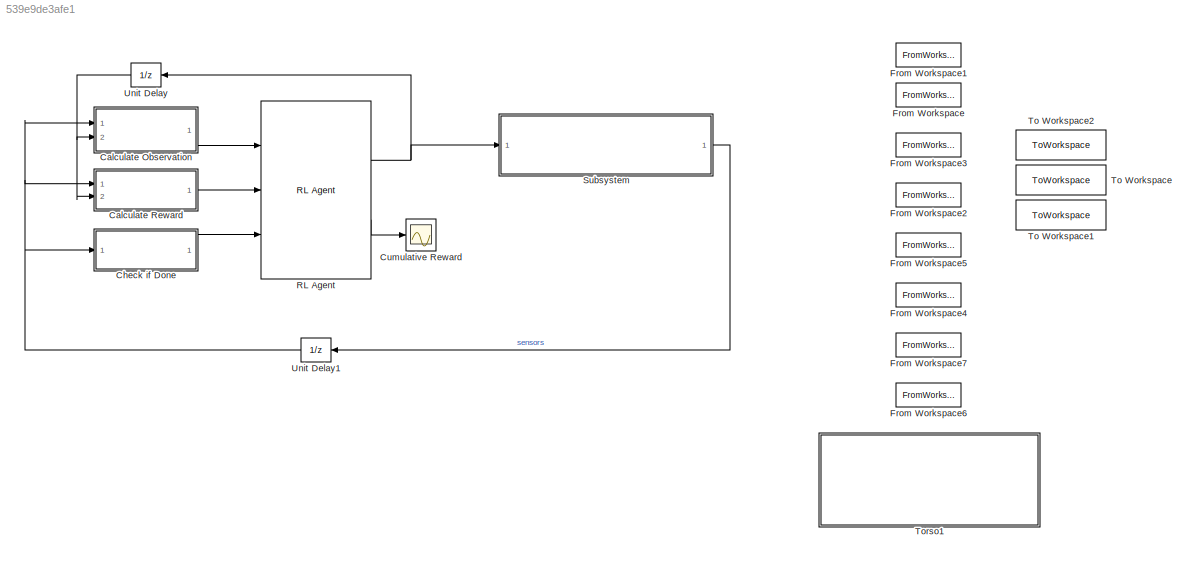
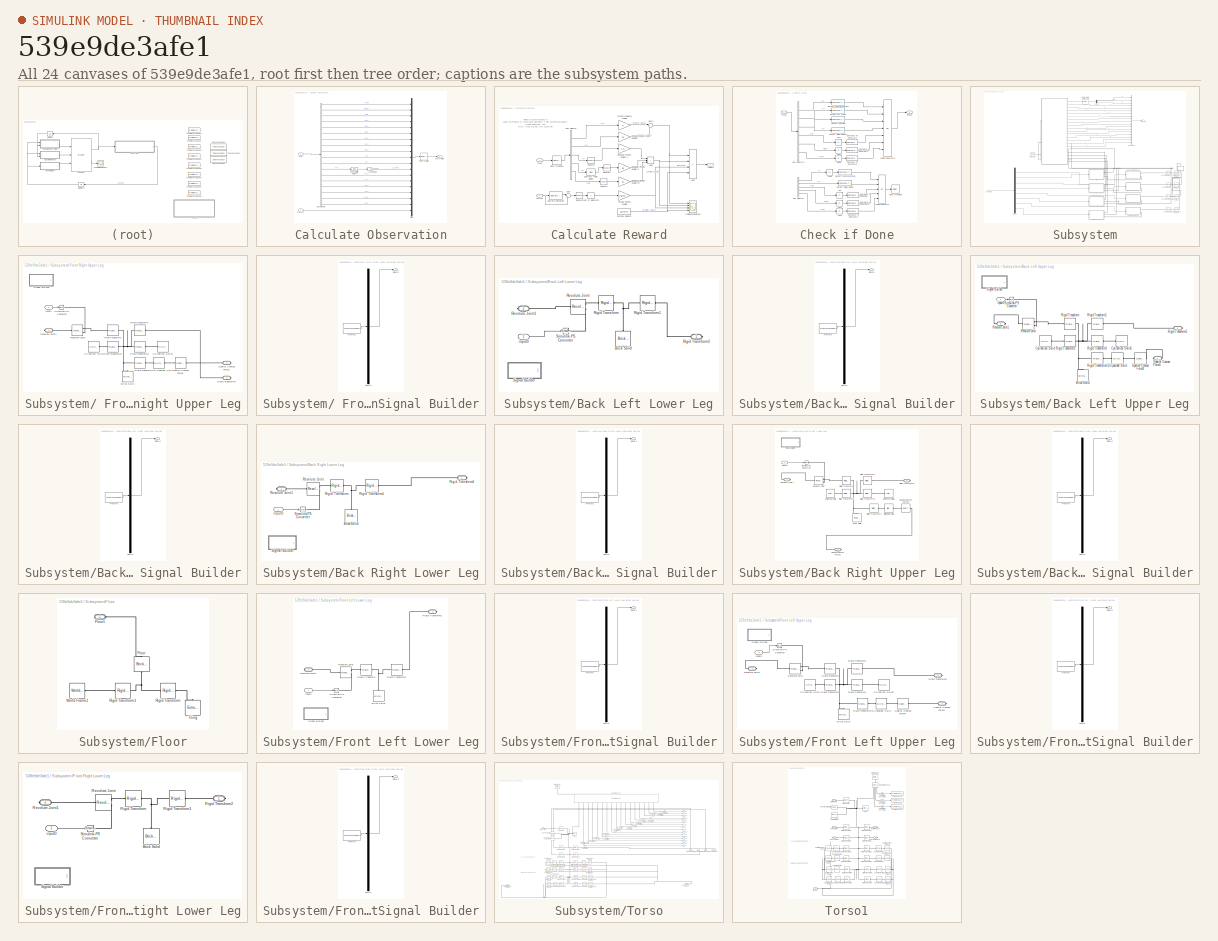
[diagram: thumbnail index - all 24 canvases of the model, root first then tree order]
MODEL slx_539e9de3afe1
KIND model
CONFIG AbsTol = auto
CONFIG EnableMultiTasking = on
CONFIG FixedStep = auto
CONFIG MaxStep = 0.01
CONFIG MinStep = auto
CONFIG RelTol = 1e-3
CONFIG SampleTimeConstraint = Unconstrained
CONFIG SolverName = ode15s
CONFIG StartTime = 0.0
CONFIG StopTime = 5
BLOCK [SubSystem] Calculate Observation
  Ports = [2, 1]
  RequestExecContextInheritance = off
BLOCK [BusSelector] Calculate Observation/Bus Selector
  OutputSignals = yaw,pitch,roll,wx,wy,wz,bx,by,bz,x,y,z,vx,vy,vz,ax,ay,az
  Ports = [1, 18]
BLOCK [Mux] Calculate Observation/Mux
  DisplayOption = bar
  Inputs = 19
  Ports = [19, 1]
BLOCK [RateTransition] Calculate Observation/Rate Transition
BLOCK [Gain] Calculate Observation/Scale Height
  Gain = 1/0.05
BLOCK [Bias] Calculate Observation/Subtract Initial Height
  SaturateOnIntegerOverflow = off
BLOCK [Inport] Calculate Observation/meas
BLOCK [Outport] Calculate Observation/observation
  VectorParamsAs1DForOutWhenUnconnected = off
BLOCK [Inport] Calculate Observation/prevAct
  Port = 2
BLOCK [SubSystem] Calculate Reward
  Ports = [2, 1]
  RequestExecContextInheritance = off
BLOCK [Sum] Calculate Reward/Add1
  IconShape = rectangular
  Inputs = +++
  Ports = [3, 1]
BLOCK [Sum] Calculate Reward/Add2
  IconShape = rectangular
  Inputs = +--+
  Ports = [4, 1]
BLOCK [BusSelector] Calculate Reward/Bus Selector
  OutputSignals = vx,x,y,z,roll
  Ports = [1, 5]
BLOCK [Gain] Calculate Reward/Deviation Penalty Scaling Y
  Gain = 1.5
BLOCK [Gain] Calculate Reward/Deviation Penalty Scaling Z
  Gain = 25
BLOCK [Gain] Calculate Reward/Deviation Penalty Scaling Z1
  Gain = 10
BLOCK [Reference] Calculate Reward/Discrete Derivative  REF=simulink/Discrete/Discrete Derivative
  Ports = [1, 1]
  SourceBlock = simulink/Discrete/Discrete Derivative
  SourceProductBaseCode = SL
  SourceType = Discrete Derivative
BLOCK [Constant] Calculate Reward/Duration Reward
  Value = 25*Ts/Tf
BLOCK [Gain] Calculate Reward/Forward Reward Scaling
  Gain = 5
BLOCK [Gain] Calculate Reward/Forward Reward Scaling1
  Gain = 10
BLOCK [Scope] Calculate Reward/Individual Rewards
  Floating = off
  NumInputPorts = 4
  Ports = [4]
  ScopeSpecificationString = Simulink.scopes.TimeScopeBlockCfg('CurrentConfiguration', extmgr.ConfigurationSet(extmgr.Configuration('Core','General UI',true),extmgr.Configuration('Core','Source UI',true),extmgr.Configuration('Sources','WiredSimulink',true,'DataLoggingVariableName','ScopeData1'),extmgr.Configuration('Visuals','Time Domain',true,'SerializedDisplays',{struct('MinYLimReal','-0.12179','MaxYLimReal','1.09608','YLab...<+1411ch>
BLOCK [RateTransition] Calculate Reward/Rate Transition
  OutPortSampleTime = Ts
BLOCK [Math] Calculate Reward/Square1
  Operator = square
  Ports = [1, 1]
  SignedPower = on
BLOCK [Math] Calculate Reward/Square2
  Operator = square
  Ports = [1, 1]
  SignedPower = on
BLOCK [Math] Calculate Reward/Square3
  Operator = square
  Ports = [1, 1]
  SignedPower = on
BLOCK [Math] Calculate Reward/Square4
  Operator = square
  Ports = [1, 1]
  SignedPower = on
BLOCK [Bias] Calculate Reward/Subtract Initial Height
  SaturateOnIntegerOverflow = off
BLOCK [Sum] Calculate Reward/Sum
  Inputs = |++
  Ports = [2, 1]
BLOCK [Sum] Calculate Reward/Sum of Elements
  IconShape = rectangular
  Inputs = +
  Ports = [1, 1]
BLOCK [Sum] Calculate Reward/Sum1
  Inputs = |++
  Ports = [2, 1]
BLOCK [Gain] Calculate Reward/Torque Penalty Scaling
  Gain = 0.05*pi/2
BLOCK [Inport] Calculate Reward/meas
BLOCK [Inport] Calculate Reward/prevAct
  Port = 2
BLOCK [Outport] Calculate Reward/reward
  VectorParamsAs1DForOutWhenUnconnected = off
BLOCK [SubSystem] Check if Done
  Ports = [1, 1]
  RequestExecContextInheritance = off
BLOCK [Abs] Check if Done/Abs
  Commented = on
  SaturateOnIntegerOverflow = off
BLOCK [Abs] Check if Done/Abs1
  Commented = on
  SaturateOnIntegerOverflow = off
BLOCK [Abs] Check if Done/Abs2
  Commented = on
  SaturateOnIntegerOverflow = off
BLOCK [Abs] Check if Done/Abs3
  Commented = on
  SaturateOnIntegerOverflow = off
BLOCK [Abs] Check if Done/Abs4
  SaturateOnIntegerOverflow = off
BLOCK [Abs] Check if Done/Abs5
  SaturateOnIntegerOverflow = off
BLOCK [Abs] Check if Done/Abs6
  SaturateOnIntegerOverflow = off
BLOCK [BusSelector] Check if Done/Bus Selector
  Commented = on
  OutputSignals = y,z,roll,pitch,yaw
  Ports = [1, 5]
BLOCK [BusSelector] Check if Done/Bus Selector1
  OutputSignals = x,y,z,roll,pitch,yaw
  Ports = [1, 6]
BLOCK [Reference] Check if Done/Compare To Constant  REF=simulink/Logic and Bit
Operations/Compare
To Constant
  Commented = on
  Ports = [1, 1]
  SourceBlock = simulink/Logic and Bit\nOperations/Compare\nTo Constant
  SourceProductBaseCode = SL
  SourceType = Compare To Constant
BLOCK [Reference] Check if Done/Compare To Constant1  REF=simulink/Logic and Bit
Operations/Compare
To Constant
  Commented = on
  Ports = [1, 1]
  SourceBlock = simulink/Logic and Bit\nOperations/Compare\nTo Constant
  SourceProductBaseCode = SL
  SourceType = Compare To Constant
BLOCK [Reference] Check if Done/Compare To Constant2  REF=simulink/Logic and Bit
Operations/Compare
To Constant
  Commented = on
  Ports = [1, 1]
  SourceBlock = simulink/Logic and Bit\nOperations/Compare\nTo Constant
  SourceProductBaseCode = SL
  SourceType = Compare To Constant
BLOCK [Reference] Check if Done/Compare To Constant3  REF=simulink/Logic and Bit
Operations/Compare
To Constant
  Ports = [1, 1]
  SourceBlock = simulink/Logic and Bit\nOperations/Compare\nTo Constant
  SourceProductBaseCode = SL
  SourceType = Compare To Constant
BLOCK [Reference] Check if Done/Compare To Constant4  REF=simulink/Logic and Bit
Operations/Compare
To Constant
  Ports = [1, 1]
  SourceBlock = simulink/Logic and Bit\nOperations/Compare\nTo Constant
  SourceProductBaseCode = SL
  SourceType = Compare To Constant
BLOCK [Reference] Check if Done/Compare To Constant5  REF=simulink/Logic and Bit
Operations/Compare
To Constant
  Ports = [1, 1]
  SourceBlock = simulink/Logic and Bit\nOperations/Compare\nTo Constant
  SourceProductBaseCode = SL
  SourceType = Compare To Constant
BLOCK [Reference] Check if Done/Detect Fallen Robot  REF=simulink/Logic and Bit
Operations/Compare
To Constant
  Commented = on
  Ports = [1, 1]
  SourceBlock = simulink/Logic and Bit\nOperations/Compare\nTo Constant
  SourceProductBaseCode = SL
  SourceType = Compare To Constant
BLOCK [Reference] Check if Done/Detect Fallen Robot1  REF=simulink/Logic and Bit
Operations/Compare
To Constant
  Ports = [1, 1]
  SourceBlock = simulink/Logic and Bit\nOperations/Compare\nTo Constant
  SourceProductBaseCode = SL
  SourceType = Compare To Constant
BLOCK [Reference] Check if Done/Detect Jumping  REF=simulink/Logic and Bit
Operations/Compare
To Constant
  Ports = [1, 1]
  SourceBlock = simulink/Logic and Bit\nOperations/Compare\nTo Constant
  SourceProductBaseCode = SL
  SourceType = Compare To Constant
BLOCK [Reference] Check if Done/Detect Lateral Motion  REF=simulink/Logic and Bit
Operations/Compare
To Constant
  Commented = on
  Ports = [1, 1]
  SourceBlock = simulink/Logic and Bit\nOperations/Compare\nTo Constant
  SourceProductBaseCode = SL
  SourceType = Compare To Constant
BLOCK [Reference] Check if Done/Detect Lateral Motion1  REF=simulink/Logic and Bit
Operations/Compare
To Constant
  Ports = [1, 1]
  SourceBlock = simulink/Logic and Bit\nOperations/Compare\nTo Constant
  SourceProductBaseCode = SL
  SourceType = Compare To Constant
BLOCK [Reference] Check if Done/Detect Off Track  REF=simulink/Logic and Bit
Operations/Compare
To Constant
  Ports = [1, 1]
  SourceBlock = simulink/Logic and Bit\nOperations/Compare\nTo Constant
  SourceProductBaseCode = SL
  SourceType = Compare To Constant
BLOCK [Logic] Check if Done/Logical Operator
  AllPortsSameDT = off
  Commented = on
  Inputs = 5
  Operator = OR
  OutDataTypeStr = boolean
  Ports = [5, 1]
BLOCK [Logic] Check if Done/Logical Operator1
  AllPortsSameDT = off
  Inputs = 7
  Operator = OR
  OutDataTypeStr = boolean
  Ports = [7, 1]
BLOCK [RateTransition] Check if Done/Rate Transition
  Commented = on
BLOCK [Outport] Check if Done/isdone
  VectorParamsAs1DForOutWhenUnconnected = off
BLOCK [Inport] Check if Done/meas
BLOCK [Scope] Cumulative Reward
  Floating = off
  NumInputPorts = 1
  Ports = [1]
  ScopeSpecificationString = Simulink.scopes.TimeScopeBlockCfg('CurrentConfiguration', extmgr.ConfigurationSet(extmgr.Configuration('Core','General UI',true),extmgr.Configuration('Core','Source UI',true),extmgr.Configuration('Sources','WiredSimulink',true,'DataLoggingVariableName','ScopeData1'),extmgr.Configuration('Visuals','Time Domain',true,'SerializedDisplays',{struct('MinYLimReal','-11.65183','MaxYLimReal','104.59199','Y...<+1423ch>
BLOCK [FromWorkspace] From Workspace
  Commented = on
  VariableName = BLUpperLeg
BLOCK [FromWorkspace] From Workspace1
  Commented = on
  VariableName = BLLowerLeg
BLOCK [FromWorkspace] From Workspace2
  Commented = on
  VariableName = BRUpperLeg
BLOCK [FromWorkspace] From Workspace3
  Commented = on
  VariableName = BRLowerLeg
BLOCK [FromWorkspace] From Workspace4
  Commented = on
  VariableName = FLUpperLeg
BLOCK [FromWorkspace] From Workspace5
  Commented = on
  VariableName = FLLowerLeg
BLOCK [FromWorkspace] From Workspace6
  Commented = on
  VariableName = FRUpperLeg
BLOCK [FromWorkspace] From Workspace7
  Commented = on
  VariableName = FRLowerLeg
BLOCK [Reference] RL Agent  REF=rllib/RL Agent
  Ports = [3, 2]
  SourceBlock = rllib/RL Agent
  SourceProductName = Reinforcement Learning
  SourceType = RL Agent
BLOCK [SubSystem] Subsystem
  Ports = [1, 1]
  RequestExecContextInheritance = off
BLOCK [SubSystem] Subsystem/ Front Right Upper Leg
  Ports = [1, 0, 0, 0, 0, 0, 3]
  RequestExecContextInheritance = off
BLOCK [Reference] Subsystem/ Front Right Upper Leg/Brick Solid  REF=sm_lib/Body Elements/Brick Solid
  Ports = [0, 0, 0, 0, 0, 0, 1]
  SourceBlock = sm_lib/Body Elements/Brick Solid
  SourceProductBaseCode = MS
  SourceType = Brick Solid
BLOCK [Reference] Subsystem/ Front Right Upper Leg/Cylindrical Solid  REF=sm_lib/Body Elements/Cylindrical Solid
  Ports = [0, 0, 0, 0, 0, 0, 1]
  SourceBlock = sm_lib/Body Elements/Cylindrical Solid
  SourceProductBaseCode = MS
  SourceType = Cylindrical Solid
BLOCK [Reference] Subsystem/ Front Right Upper Leg/Cylindrical Solid1  REF=sm_lib/Body Elements/Cylindrical Solid
  NameLocation = top
  Ports = [0, 0, 0, 0, 0, 0, 1]
  SourceBlock = sm_lib/Body Elements/Cylindrical Solid
  SourceProductBaseCode = MS
  SourceType = Cylindrical Solid
BLOCK [Reference] Subsystem/ Front Right Upper Leg/Ellipsoidal Solid  REF=sm_lib/Body Elements/Ellipsoidal Solid
  NameLocation = top
  Ports = [0, 0, 0, 0, 0, 1, 1]
  SourceBlock = sm_lib/Body Elements/Ellipsoidal Solid
  SourceProductBaseCode = MS
  SourceType = Ellipsoidal Solid
BLOCK [Reference] Subsystem/ Front Right Upper Leg/Revolute Joint  REF=sm_lib/Joints/Revolute Joint
  Ports = [0, 0, 0, 0, 0, 2, 1]
  SourceBlock = sm_lib/Joints/Revolute Joint
  SourceProductBaseCode = MS
  SourceType = Revolute Joint
BLOCK [PMIOPort] Subsystem/ Front Right Upper Leg/Revolute Joint1
  NameLocation = top
  Side = Right
BLOCK [Reference] Subsystem/ Front Right Upper Leg/Rigid Transform  REF=sm_lib/Frames and
Transforms/Rigid
Transform
  Ports = [0, 0, 0, 0, 0, 1, 1]
  SourceBlock = sm_lib/Frames and\nTransforms/Rigid\nTransform
  SourceProductBaseCode = MS
  SourceType = Rigid\nTransform
BLOCK [Reference] Subsystem/ Front Right Upper Leg/Rigid Transform1  REF=sm_lib/Frames and
Transforms/Rigid
Transform
  Ports = [0, 0, 0, 0, 0, 1, 1]
  SourceBlock = sm_lib/Frames and\nTransforms/Rigid\nTransform
  SourceProductBaseCode = MS
  SourceType = Rigid\nTransform
BLOCK [Reference] Subsystem/ Front Right Upper Leg/Rigid Transform2  REF=sm_lib/Frames and
Transforms/Rigid
Transform
  NameLocation = top
  Ports = [0, 0, 0, 0, 0, 1, 1]
  SourceBlock = sm_lib/Frames and\nTransforms/Rigid\nTransform
  SourceProductBaseCode = MS
  SourceType = Rigid\nTransform
BLOCK [Reference] Subsystem/ Front Right Upper Leg/Rigid Transform3  REF=sm_lib/Frames and
Transforms/Rigid
Transform
  Ports = [0, 0, 0, 0, 0, 1, 1]
  SourceBlock = sm_lib/Frames and\nTransforms/Rigid\nTransform
  SourceProductBaseCode = MS
  SourceType = Rigid\nTransform
BLOCK [Reference] Subsystem/ Front Right Upper Leg/Rigid Transform4  REF=sm_lib/Frames and
Transforms/Rigid
Transform
  Ports = [0, 0, 0, 0, 0, 1, 1]
  SourceBlock = sm_lib/Frames and\nTransforms/Rigid\nTransform
  SourceProductBaseCode = MS
  SourceType = Rigid\nTransform
BLOCK [PMIOPort] Subsystem/ Front Right Upper Leg/Rigid Transform5
  Port = 3
  Side = Right
BLOCK [SubSystem] Subsystem/ Front Right Upper Leg/Signal Builder
  ClipboardFcn = sigbuilder_block('clipboard');
  CloseFcn = sigbuilder_block('close');
  Commented = on
  ContinueFcn = sigbuilder_block('continue');
  CopyFcn = sigbuilder_block('copy');
  DeleteFcn = sigbuilder_block('delete');
  LoadFcn = sigbuilder_block('load');
  MaskHideContents = on
  ModelCloseFcn = sigbuilder_block('modelClose');
  NameChangeFcn = sigbuilder_block('namechange');
  OpenFcn = sigbuilder_block('open',[110 61 550.5 362.5 ]);
  PauseFcn = sigbuilder_block('pause');
  Ports = [0, 1]
  PreSaveFcn = sigbuilder_block('preSave');
  RequestExecContextInheritance = off
  StartFcn = sigbuilder_block('start');
  StopFcn = sigbuilder_block('stop');
  Tag = STV Subsys
BLOCK [Demux] Subsystem/ Front Right Upper Leg/Signal Builder/Demux
  DisplayOption = none
  Outputs = 1
  Ports = [1, 1]
  Tag = STV Demux
BLOCK [FromWorkspace] Subsystem/ Front Right Upper Leg/Signal Builder/FromWs
  Tag = STV FromWs
  VariableName = tuvar
BLOCK [Outport] Subsystem/ Front Right Upper Leg/Signal Builder/Signal 1
  Tag = STV Outport
BLOCK [Reference] Subsystem/ Front Right Upper Leg/Simulink-PS Converter  REF=nesl_utility/Simulink-PS
Converter
  Ports = [1, 0, 0, 0, 0, 0, 1]
  SourceBlock = nesl_utility/Simulink-PS\nConverter
  SourceProductBaseCode = SS
  SourceType = Simulink-PS\nConverter
BLOCK [PMIOPort] Subsystem/ Front Right Upper Leg/Spatial Contact Force1
  Port = 2
  Side = Right
BLOCK [Reference] Subsystem/ Front Right Upper Leg/Spatial Contact Force4  REF=sm_lib/Forces and
Torques/Spatial
Contact Force
  Ports = [0, 0, 0, 0, 0, 1, 1]
  SourceBlock = sm_lib/Forces and\nTorques/Spatial\nContact Force
  SourceProductBaseCode = MS
  SourceType = Spatial\nContact Force
BLOCK [Inport] Subsystem/ Front Right Upper Leg/input0
BLOCK [SubSystem] Subsystem/Back Left Lower Leg
  Ports = [1, 0, 0, 0, 0, 0, 2]
  RequestExecContextInheritance = off
BLOCK [Reference] Subsystem/Back Left Lower Leg/Brick Solid  REF=sm_lib/Body Elements/Brick Solid
  NameLocation = right
  Ports = [0, 0, 0, 0, 0, 0, 1]
  SourceBlock = sm_lib/Body Elements/Brick Solid
  SourceProductBaseCode = MS
  SourceType = Brick Solid
BLOCK [Reference] Subsystem/Back Left Lower Leg/Revolute Joint  REF=sm_lib/Joints/Revolute Joint
  Ports = [0, 0, 0, 0, 0, 2, 1]
  SourceBlock = sm_lib/Joints/Revolute Joint
  SourceProductBaseCode = MS
  SourceType = Revolute Joint
BLOCK [PMIOPort] Subsystem/Back Left Lower Leg/Revolute Joint1
  Port = 2
  Side = Right
BLOCK [Reference] Subsystem/Back Left Lower Leg/Rigid Transform  REF=sm_lib/Frames and
Transforms/Rigid
Transform
  Ports = [0, 0, 0, 0, 0, 1, 1]
  SourceBlock = sm_lib/Frames and\nTransforms/Rigid\nTransform
  SourceProductBaseCode = MS
  SourceType = Rigid\nTransform
BLOCK [Reference] Subsystem/Back Left Lower Leg/Rigid Transform1  REF=sm_lib/Frames and
Transforms/Rigid
Transform
  Ports = [0, 0, 0, 0, 0, 1, 1]
  SourceBlock = sm_lib/Frames and\nTransforms/Rigid\nTransform
  SourceProductBaseCode = MS
  SourceType = Rigid\nTransform
BLOCK [PMIOPort] Subsystem/Back Left Lower Leg/Rigid Transform2
  Side = Right
BLOCK [SubSystem] Subsystem/Back Left Lower Leg/Signal Builder
  ClipboardFcn = sigbuilder_block('clipboard');
  CloseFcn = sigbuilder_block('close');
  Commented = on
  ContinueFcn = sigbuilder_block('continue');
  CopyFcn = sigbuilder_block('copy');
  DeleteFcn = sigbuilder_block('delete');
  LoadFcn = sigbuilder_block('load');
  MaskHideContents = on
  ModelCloseFcn = sigbuilder_block('modelClose');
  NameChangeFcn = sigbuilder_block('namechange');
  OpenFcn = sigbuilder_block('open',[110 61 550.5 362.5 ]);
  PauseFcn = sigbuilder_block('pause');
  Ports = [0, 1]
  PreSaveFcn = sigbuilder_block('preSave');
  RequestExecContextInheritance = off
  StartFcn = sigbuilder_block('start');
  StopFcn = sigbuilder_block('stop');
  Tag = STV Subsys
BLOCK [Demux] Subsystem/Back Left Lower Leg/Signal Builder/Demux
  DisplayOption = none
  Outputs = 1
  Ports = [1, 1]
  Tag = STV Demux
BLOCK [FromWorkspace] Subsystem/Back Left Lower Leg/Signal Builder/FromWs
  Tag = STV FromWs
  VariableName = tuvar
BLOCK [Outport] Subsystem/Back Left Lower Leg/Signal Builder/Signal 1
  Tag = STV Outport
BLOCK [Reference] Subsystem/Back Left Lower Leg/Simulink-PS Converter  REF=nesl_utility/Simulink-PS
Converter
  Ports = [1, 0, 0, 0, 0, 0, 1]
  SourceBlock = nesl_utility/Simulink-PS\nConverter
  SourceProductBaseCode = SS
  SourceType = Simulink-PS\nConverter
BLOCK [Inport] Subsystem/Back Left Lower Leg/input0
BLOCK [SubSystem] Subsystem/Back Left Upper Leg
  Ports = [1, 0, 0, 0, 0, 0, 3]
  RequestExecContextInheritance = off
BLOCK [Reference] Subsystem/Back Left Upper Leg/Brick Solid  REF=sm_lib/Body Elements/Brick Solid
  Ports = [0, 0, 0, 0, 0, 0, 1]
  SourceBlock = sm_lib/Body Elements/Brick Solid
  SourceProductBaseCode = MS
  SourceType = Brick Solid
BLOCK [Reference] Subsystem/Back Left Upper Leg/Cylindrical Solid  REF=sm_lib/Body Elements/Cylindrical Solid
  Ports = [0, 0, 0, 0, 0, 0, 1]
  SourceBlock = sm_lib/Body Elements/Cylindrical Solid
  SourceProductBaseCode = MS
  SourceType = Cylindrical Solid
BLOCK [Reference] Subsystem/Back Left Upper Leg/Cylindrical Solid1  REF=sm_lib/Body Elements/Cylindrical Solid
  NameLocation = top
  Ports = [0, 0, 0, 0, 0, 0, 1]
  SourceBlock = sm_lib/Body Elements/Cylindrical Solid
  SourceProductBaseCode = MS
  SourceType = Cylindrical Solid
BLOCK [Reference] Subsystem/Back Left Upper Leg/Ellipsoidal Solid  REF=sm_lib/Body Elements/Ellipsoidal Solid
  NameLocation = top
  Ports = [0, 0, 0, 0, 0, 1, 1]
  SourceBlock = sm_lib/Body Elements/Ellipsoidal Solid
  SourceProductBaseCode = MS
  SourceType = Ellipsoidal Solid
BLOCK [Reference] Subsystem/Back Left Upper Leg/Revolute Joint  REF=sm_lib/Joints/Revolute Joint
  Ports = [0, 0, 0, 0, 0, 2, 1]
  SourceBlock = sm_lib/Joints/Revolute Joint
  SourceProductBaseCode = MS
  SourceType = Revolute Joint
BLOCK [PMIOPort] Subsystem/Back Left Upper Leg/Revolute Joint1
  Port = 2
  Side = Right
BLOCK [Reference] Subsystem/Back Left Upper Leg/Rigid Transform  REF=sm_lib/Frames and
Transforms/Rigid
Transform
  Ports = [0, 0, 0, 0, 0, 1, 1]
  SourceBlock = sm_lib/Frames and\nTransforms/Rigid\nTransform
  SourceProductBaseCode = MS
  SourceType = Rigid\nTransform
BLOCK [Reference] Subsystem/Back Left Upper Leg/Rigid Transform1  REF=sm_lib/Frames and
Transforms/Rigid
Transform
  Ports = [0, 0, 0, 0, 0, 1, 1]
  SourceBlock = sm_lib/Frames and\nTransforms/Rigid\nTransform
  SourceProductBaseCode = MS
  SourceType = Rigid\nTransform
BLOCK [Reference] Subsystem/Back Left Upper Leg/Rigid Transform2  REF=sm_lib/Frames and
Transforms/Rigid
Transform
  NameLocation = top
  Ports = [0, 0, 0, 0, 0, 1, 1]
  SourceBlock = sm_lib/Frames and\nTransforms/Rigid\nTransform
  SourceProductBaseCode = MS
  SourceType = Rigid\nTransform
BLOCK [Reference] Subsystem/Back Left Upper Leg/Rigid Transform3  REF=sm_lib/Frames and
Transforms/Rigid
Transform
  Ports = [0, 0, 0, 0, 0, 1, 1]
  SourceBlock = sm_lib/Frames and\nTransforms/Rigid\nTransform
  SourceProductBaseCode = MS
  SourceType = Rigid\nTransform
BLOCK [Reference] Subsystem/Back Left Upper Leg/Rigid Transform4  REF=sm_lib/Frames and
Transforms/Rigid
Transform
  Ports = [0, 0, 0, 0, 0, 1, 1]
  SourceBlock = sm_lib/Frames and\nTransforms/Rigid\nTransform
  SourceProductBaseCode = MS
  SourceType = Rigid\nTransform
BLOCK [PMIOPort] Subsystem/Back Left Upper Leg/Rigid Transform5
  Port = 3
  Side = Right
BLOCK [SubSystem] Subsystem/Back Left Upper Leg/Signal Builder
  ClipboardFcn = sigbuilder_block('clipboard');
  CloseFcn = sigbuilder_block('close');
  Commented = on
  ContinueFcn = sigbuilder_block('continue');
  CopyFcn = sigbuilder_block('copy');
  DeleteFcn = sigbuilder_block('delete');
  LoadFcn = sigbuilder_block('load');
  MaskHideContents = on
  ModelCloseFcn = sigbuilder_block('modelClose');
  NameChangeFcn = sigbuilder_block('namechange');
  OpenFcn = sigbuilder_block('open',[110 61 550.5 362.5 ]);
  PauseFcn = sigbuilder_block('pause');
  Ports = [0, 1]
  PreSaveFcn = sigbuilder_block('preSave');
  RequestExecContextInheritance = off
  StartFcn = sigbuilder_block('start');
  StopFcn = sigbuilder_block('stop');
  Tag = STV Subsys
BLOCK [Demux] Subsystem/Back Left Upper Leg/Signal Builder/Demux
  DisplayOption = none
  Outputs = 1
  Ports = [1, 1]
  Tag = STV Demux
BLOCK [FromWorkspace] Subsystem/Back Left Upper Leg/Signal Builder/FromWs
  Tag = STV FromWs
  VariableName = tuvar
BLOCK [Outport] Subsystem/Back Left Upper Leg/Signal Builder/Signal 1
  Tag = STV Outport
BLOCK [Reference] Subsystem/Back Left Upper Leg/Simulink-PS Converter  REF=nesl_utility/Simulink-PS
Converter
  Ports = [1, 0, 0, 0, 0, 0, 1]
  SourceBlock = nesl_utility/Simulink-PS\nConverter
  SourceProductBaseCode = SS
  SourceType = Simulink-PS\nConverter
BLOCK [PMIOPort] Subsystem/Back Left Upper Leg/Spatial Contact Force1
  Side = Right
BLOCK [Reference] Subsystem/Back Left Upper Leg/Spatial Contact Force4  REF=sm_lib/Forces and
Torques/Spatial
Contact Force
  Ports = [0, 0, 0, 0, 0, 1, 1]
  SourceBlock = sm_lib/Forces and\nTorques/Spatial\nContact Force
  SourceProductBaseCode = MS
  SourceType = Spatial\nContact Force
BLOCK [Inport] Subsystem/Back Left Upper Leg/input0
BLOCK [SubSystem] Subsystem/Back Right Lower Leg
  Ports = [1, 0, 0, 0, 0, 0, 2]
  RequestExecContextInheritance = off
BLOCK [Reference] Subsystem/Back Right Lower Leg/Brick Solid  REF=sm_lib/Body Elements/Brick Solid
  NameLocation = right
  Ports = [0, 0, 0, 0, 0, 0, 1]
  SourceBlock = sm_lib/Body Elements/Brick Solid
  SourceProductBaseCode = MS
  SourceType = Brick Solid
BLOCK [Reference] Subsystem/Back Right Lower Leg/Revolute Joint  REF=sm_lib/Joints/Revolute Joint
  Ports = [0, 0, 0, 0, 0, 2, 1]
  SourceBlock = sm_lib/Joints/Revolute Joint
  SourceProductBaseCode = MS
  SourceType = Revolute Joint
BLOCK [PMIOPort] Subsystem/Back Right Lower Leg/Revolute Joint1
  Port = 2
  Side = Right
BLOCK [Reference] Subsystem/Back Right Lower Leg/Rigid Transform  REF=sm_lib/Frames and
Transforms/Rigid
Transform
  Ports = [0, 0, 0, 0, 0, 1, 1]
  SourceBlock = sm_lib/Frames and\nTransforms/Rigid\nTransform
  SourceProductBaseCode = MS
  SourceType = Rigid\nTransform
BLOCK [Reference] Subsystem/Back Right Lower Leg/Rigid Transform1  REF=sm_lib/Frames and
Transforms/Rigid
Transform
  Ports = [0, 0, 0, 0, 0, 1, 1]
  SourceBlock = sm_lib/Frames and\nTransforms/Rigid\nTransform
  SourceProductBaseCode = MS
  SourceType = Rigid\nTransform
BLOCK [PMIOPort] Subsystem/Back Right Lower Leg/Rigid Transform2
  Side = Right
BLOCK [SubSystem] Subsystem/Back Right Lower Leg/Signal Builder
  ClipboardFcn = sigbuilder_block('clipboard');
  CloseFcn = sigbuilder_block('close');
  Commented = on
  ContinueFcn = sigbuilder_block('continue');
  CopyFcn = sigbuilder_block('copy');
  DeleteFcn = sigbuilder_block('delete');
  LoadFcn = sigbuilder_block('load');
  MaskHideContents = on
  ModelCloseFcn = sigbuilder_block('modelClose');
  NameChangeFcn = sigbuilder_block('namechange');
  OpenFcn = sigbuilder_block('open',[110 61 550.5 362.5 ]);
  PauseFcn = sigbuilder_block('pause');
  Ports = [0, 1]
  PreSaveFcn = sigbuilder_block('preSave');
  RequestExecContextInheritance = off
  StartFcn = sigbuilder_block('start');
  StopFcn = sigbuilder_block('stop');
  Tag = STV Subsys
BLOCK [Demux] Subsystem/Back Right Lower Leg/Signal Builder/Demux
  DisplayOption = none
  Outputs = 1
  Ports = [1, 1]
  Tag = STV Demux
BLOCK [FromWorkspace] Subsystem/Back Right Lower Leg/Signal Builder/FromWs
  Tag = STV FromWs
  VariableName = tuvar
BLOCK [Outport] Subsystem/Back Right Lower Leg/Signal Builder/Signal 1
  Tag = STV Outport
BLOCK [Reference] Subsystem/Back Right Lower Leg/Simulink-PS Converter  REF=nesl_utility/Simulink-PS
Converter
  Ports = [1, 0, 0, 0, 0, 0, 1]
  SourceBlock = nesl_utility/Simulink-PS\nConverter
  SourceProductBaseCode = SS
  SourceType = Simulink-PS\nConverter
BLOCK [Inport] Subsystem/Back Right Lower Leg/input0
BLOCK [SubSystem] Subsystem/Back Right Upper Leg
  Ports = [1, 0, 0, 0, 0, 0, 3]
  RequestExecContextInheritance = off
BLOCK [Reference] Subsystem/Back Right Upper Leg/Brick Solid  REF=sm_lib/Body Elements/Brick Solid
  Ports = [0, 0, 0, 0, 0, 0, 1]
  SourceBlock = sm_lib/Body Elements/Brick Solid
  SourceProductBaseCode = MS
  SourceType = Brick Solid
BLOCK [Reference] Subsystem/Back Right Upper Leg/Cylindrical Solid  REF=sm_lib/Body Elements/Cylindrical Solid
  Ports = [0, 0, 0, 0, 0, 0, 1]
  SourceBlock = sm_lib/Body Elements/Cylindrical Solid
  SourceProductBaseCode = MS
  SourceType = Cylindrical Solid
BLOCK [Reference] Subsystem/Back Right Upper Leg/Cylindrical Solid1  REF=sm_lib/Body Elements/Cylindrical Solid
  NameLocation = top
  Ports = [0, 0, 0, 0, 0, 0, 1]
  SourceBlock = sm_lib/Body Elements/Cylindrical Solid
  SourceProductBaseCode = MS
  SourceType = Cylindrical Solid
BLOCK [Reference] Subsystem/Back Right Upper Leg/Ellipsoidal Solid  REF=sm_lib/Body Elements/Ellipsoidal Solid
  NameLocation = top
  Ports = [0, 0, 0, 0, 0, 1, 1]
  SourceBlock = sm_lib/Body Elements/Ellipsoidal Solid
  SourceProductBaseCode = MS
  SourceType = Ellipsoidal Solid
BLOCK [Reference] Subsystem/Back Right Upper Leg/Revolute Joint  REF=sm_lib/Joints/Revolute Joint
  Ports = [0, 0, 0, 0, 0, 2, 1]
  SourceBlock = sm_lib/Joints/Revolute Joint
  SourceProductBaseCode = MS
  SourceType = Revolute Joint
BLOCK [PMIOPort] Subsystem/Back Right Upper Leg/Revolute Joint1
  Side = Right
BLOCK [Reference] Subsystem/Back Right Upper Leg/Rigid Transform  REF=sm_lib/Frames and
Transforms/Rigid
Transform
  Ports = [0, 0, 0, 0, 0, 1, 1]
  SourceBlock = sm_lib/Frames and\nTransforms/Rigid\nTransform
  SourceProductBaseCode = MS
  SourceType = Rigid\nTransform
BLOCK [Reference] Subsystem/Back Right Upper Leg/Rigid Transform1  REF=sm_lib/Frames and
Transforms/Rigid
Transform
  Ports = [0, 0, 0, 0, 0, 1, 1]
  SourceBlock = sm_lib/Frames and\nTransforms/Rigid\nTransform
  SourceProductBaseCode = MS
  SourceType = Rigid\nTransform
BLOCK [Reference] Subsystem/Back Right Upper Leg/Rigid Transform2  REF=sm_lib/Frames and
Transforms/Rigid
Transform
  NameLocation = top
  Ports = [0, 0, 0, 0, 0, 1, 1]
  SourceBlock = sm_lib/Frames and\nTransforms/Rigid\nTransform
  SourceProductBaseCode = MS
  SourceType = Rigid\nTransform
BLOCK [Reference] Subsystem/Back Right Upper Leg/Rigid Transform3  REF=sm_lib/Frames and
Transforms/Rigid
Transform
  Ports = [0, 0, 0, 0, 0, 1, 1]
  SourceBlock = sm_lib/Frames and\nTransforms/Rigid\nTransform
  SourceProductBaseCode = MS
  SourceType = Rigid\nTransform
BLOCK [Reference] Subsystem/Back Right Upper Leg/Rigid Transform4  REF=sm_lib/Frames and
Transforms/Rigid
Transform
  Ports = [0, 0, 0, 0, 0, 1, 1]
  SourceBlock = sm_lib/Frames and\nTransforms/Rigid\nTransform
  SourceProductBaseCode = MS
  SourceType = Rigid\nTransform
BLOCK [PMIOPort] Subsystem/Back Right Upper Leg/Rigid Transform5
  Port = 2
  Side = Right
BLOCK [SubSystem] Subsystem/Back Right Upper Leg/Signal Builder
  ClipboardFcn = sigbuilder_block('clipboard');
  CloseFcn = sigbuilder_block('close');
  Commented = on
  ContinueFcn = sigbuilder_block('continue');
  CopyFcn = sigbuilder_block('copy');
  DeleteFcn = sigbuilder_block('delete');
  LoadFcn = sigbuilder_block('load');
  MaskHideContents = on
  ModelCloseFcn = sigbuilder_block('modelClose');
  NameChangeFcn = sigbuilder_block('namechange');
  OpenFcn = sigbuilder_block('open',[110 61 550.5 362.5 ]);
  PauseFcn = sigbuilder_block('pause');
  Ports = [0, 1]
  PreSaveFcn = sigbuilder_block('preSave');
  RequestExecContextInheritance = off
  StartFcn = sigbuilder_block('start');
  StopFcn = sigbuilder_block('stop');
  Tag = STV Subsys
BLOCK [Demux] Subsystem/Back Right Upper Leg/Signal Builder/Demux
  DisplayOption = none
  Outputs = 1
  Ports = [1, 1]
  Tag = STV Demux
BLOCK [FromWorkspace] Subsystem/Back Right Upper Leg/Signal Builder/FromWs
  Tag = STV FromWs
  VariableName = tuvar
BLOCK [Outport] Subsystem/Back Right Upper Leg/Signal Builder/Signal 1
  Tag = STV Outport
BLOCK [Reference] Subsystem/Back Right Upper Leg/Simulink-PS Converter  REF=nesl_utility/Simulink-PS
Converter
  Ports = [1, 0, 0, 0, 0, 0, 1]
  SourceBlock = nesl_utility/Simulink-PS\nConverter
  SourceProductBaseCode = SS
  SourceType = Simulink-PS\nConverter
BLOCK [PMIOPort] Subsystem/Back Right Upper Leg/Spatial Contact Force1
  Port = 3
  Side = Right
BLOCK [Reference] Subsystem/Back Right Upper Leg/Spatial Contact Force4  REF=sm_lib/Forces and
Torques/Spatial
Contact Force
  Ports = [0, 0, 0, 0, 0, 1, 1]
  SourceBlock = sm_lib/Forces and\nTorques/Spatial\nContact Force
  SourceProductBaseCode = MS
  SourceType = Spatial\nContact Force
BLOCK [Inport] Subsystem/Back Right Upper Leg/input0
BLOCK [BusCreator] Subsystem/Bus Creator
  DisplayOption = bar
  InheritFromInputs = on
  Inputs = 18
  Ports = [18, 1]
BLOCK [Demux] Subsystem/Demux
  Outputs = 8
  Ports = [1, 8]
BLOCK [Demux] Subsystem/Demux1
  Outputs = 3
  Ports = [1, 3]
BLOCK [SubSystem] Subsystem/Floor
  NameLocation = right
  PortSchema = {"entries":[{"content":{"sides":[{"content":{"connectorIds":[]},"type":"ConnectorPlacement.EquallySpacedRectSide","uuid":"11e96fa0-1698-473b-91b9-c65afd80511d"},{"content":{"connectorIds":[],"side":"RIGHT"},"type":"ConnectorPlacement.EquallySpacedRectSide","uuid":"698adcb8-63bc-493a-8506-9415d482b8fe"},{"content":{"connectorIds":["LConn1"],"side":"TOP"},"type":"ConnectorPlacement.EquallySpacedRect...<+239ch>
  Ports = [0, 0, 0, 0, 0, 1]
  RequestExecContextInheritance = off
BLOCK [Reference] Subsystem/Floor/Floor  REF=sm_lib/Body Elements/Brick Solid
  NameLocation = left
  Ports = [0, 0, 0, 0, 0, 1, 1]
  SourceBlock = sm_lib/Body Elements/Brick Solid
  SourceProductBaseCode = MS
  SourceType = Brick Solid
BLOCK [PMIOPort] Subsystem/Floor/Floor1
  Side = Left
BLOCK [Reference] Subsystem/Floor/Rigid Transform  REF=sm_lib/Frames and
Transforms/Rigid
Transform
  Ports = [0, 0, 0, 0, 0, 1, 1]
  SourceBlock = sm_lib/Frames and\nTransforms/Rigid\nTransform
  SourceProductBaseCode = MS
  SourceType = Rigid\nTransform
BLOCK [Reference] Subsystem/Floor/Rigid Transform1  REF=sm_lib/Frames and
Transforms/Rigid
Transform
  Ports = [0, 0, 0, 0, 0, 1, 1]
  SourceBlock = sm_lib/Frames and\nTransforms/Rigid\nTransform
  SourceProductBaseCode = MS
  SourceType = Rigid\nTransform
BLOCK [Reference] Subsystem/Floor/Tiling  REF=sm_lib/Body Elements/Extruded Solid
  NameLocation = left
  Ports = [0, 0, 0, 0, 0, 0, 1]
  SourceBlock = sm_lib/Body Elements/Extruded Solid
  SourceProductBaseCode = MS
  SourceType = Extruded Solid
BLOCK [Reference] Subsystem/Floor/World Frame1  REF=sm_lib/Frames and
Transforms/World Frame
  Ports = [0, 0, 0, 0, 0, 0, 1]
  SourceBlock = sm_lib/Frames and\nTransforms/World Frame
  SourceProductBaseCode = MS
  SourceType = World Frame
BLOCK [SubSystem] Subsystem/Front Left Lower Leg
  Ports = [1, 0, 0, 0, 0, 0, 2]
  RequestExecContextInheritance = off
BLOCK [Reference] Subsystem/Front Left Lower Leg/Brick Solid  REF=sm_lib/Body Elements/Brick Solid
  NameLocation = right
  Ports = [0, 0, 0, 0, 0, 0, 1]
  SourceBlock = sm_lib/Body Elements/Brick Solid
  SourceProductBaseCode = MS
  SourceType = Brick Solid
BLOCK [Reference] Subsystem/Front Left Lower Leg/Revolute Joint  REF=sm_lib/Joints/Revolute Joint
  Ports = [0, 0, 0, 0, 0, 2, 1]
  SourceBlock = sm_lib/Joints/Revolute Joint
  SourceProductBaseCode = MS
  SourceType = Revolute Joint
BLOCK [PMIOPort] Subsystem/Front Left Lower Leg/Revolute Joint1
  Port = 2
  Side = Right
BLOCK [Reference] Subsystem/Front Left Lower Leg/Rigid Transform  REF=sm_lib/Frames and
Transforms/Rigid
Transform
  Ports = [0, 0, 0, 0, 0, 1, 1]
  SourceBlock = sm_lib/Frames and\nTransforms/Rigid\nTransform
  SourceProductBaseCode = MS
  SourceType = Rigid\nTransform
BLOCK [Reference] Subsystem/Front Left Lower Leg/Rigid Transform1  REF=sm_lib/Frames and
Transforms/Rigid
Transform
  Ports = [0, 0, 0, 0, 0, 1, 1]
  SourceBlock = sm_lib/Frames and\nTransforms/Rigid\nTransform
  SourceProductBaseCode = MS
  SourceType = Rigid\nTransform
BLOCK [PMIOPort] Subsystem/Front Left Lower Leg/Rigid Transform2
  Side = Right
BLOCK [SubSystem] Subsystem/Front Left Lower Leg/Signal Builder
  ClipboardFcn = sigbuilder_block('clipboard');
  CloseFcn = sigbuilder_block('close');
  Commented = on
  ContinueFcn = sigbuilder_block('continue');
  CopyFcn = sigbuilder_block('copy');
  DeleteFcn = sigbuilder_block('delete');
  LoadFcn = sigbuilder_block('load');
  MaskHideContents = on
  ModelCloseFcn = sigbuilder_block('modelClose');
  NameChangeFcn = sigbuilder_block('namechange');
  OpenFcn = sigbuilder_block('open',[110 61 550.5 362.5 ]);
  PauseFcn = sigbuilder_block('pause');
  Ports = [0, 1]
  PreSaveFcn = sigbuilder_block('preSave');
  RequestExecContextInheritance = off
  StartFcn = sigbuilder_block('start');
  StopFcn = sigbuilder_block('stop');
  Tag = STV Subsys
BLOCK [Demux] Subsystem/Front Left Lower Leg/Signal Builder/Demux
  DisplayOption = none
  Outputs = 1
  Ports = [1, 1]
  Tag = STV Demux
BLOCK [FromWorkspace] Subsystem/Front Left Lower Leg/Signal Builder/FromWs
  Tag = STV FromWs
  VariableName = tuvar
BLOCK [Outport] Subsystem/Front Left Lower Leg/Signal Builder/Signal 1
  Tag = STV Outport
BLOCK [Reference] Subsystem/Front Left Lower Leg/Simulink-PS Converter  REF=nesl_utility/Simulink-PS
Converter
  Ports = [1, 0, 0, 0, 0, 0, 1]
  SourceBlock = nesl_utility/Simulink-PS\nConverter
  SourceProductBaseCode = SS
  SourceType = Simulink-PS\nConverter
BLOCK [Inport] Subsystem/Front Left Lower Leg/input0
BLOCK [SubSystem] Subsystem/Front Left Upper Leg
  Ports = [1, 0, 0, 0, 0, 0, 3]
  RequestExecContextInheritance = off
BLOCK [Reference] Subsystem/Front Left Upper Leg/Brick Solid  REF=sm_lib/Body Elements/Brick Solid
  Ports = [0, 0, 0, 0, 0, 0, 1]
  SourceBlock = sm_lib/Body Elements/Brick Solid
  SourceProductBaseCode = MS
  SourceType = Brick Solid
BLOCK [Reference] Subsystem/Front Left Upper Leg/Cylindrical Solid  REF=sm_lib/Body Elements/Cylindrical Solid
  Ports = [0, 0, 0, 0, 0, 0, 1]
  SourceBlock = sm_lib/Body Elements/Cylindrical Solid
  SourceProductBaseCode = MS
  SourceType = Cylindrical Solid
BLOCK [Reference] Subsystem/Front Left Upper Leg/Cylindrical Solid1  REF=sm_lib/Body Elements/Cylindrical Solid
  NameLocation = top
  Ports = [0, 0, 0, 0, 0, 0, 1]
  SourceBlock = sm_lib/Body Elements/Cylindrical Solid
  SourceProductBaseCode = MS
  SourceType = Cylindrical Solid
BLOCK [Reference] Subsystem/Front Left Upper Leg/Ellipsoidal Solid  REF=sm_lib/Body Elements/Ellipsoidal Solid
  NameLocation = top
  Ports = [0, 0, 0, 0, 0, 1, 1]
  SourceBlock = sm_lib/Body Elements/Ellipsoidal Solid
  SourceProductBaseCode = MS
  SourceType = Ellipsoidal Solid
BLOCK [Reference] Subsystem/Front Left Upper Leg/Revolute Joint  REF=sm_lib/Joints/Revolute Joint
  Ports = [0, 0, 0, 0, 0, 2, 1]
  SourceBlock = sm_lib/Joints/Revolute Joint
  SourceProductBaseCode = MS
  SourceType = Revolute Joint
BLOCK [PMIOPort] Subsystem/Front Left Upper Leg/Revolute Joint1
  Side = Right
BLOCK [Reference] Subsystem/Front Left Upper Leg/Rigid Transform  REF=sm_lib/Frames and
Transforms/Rigid
Transform
  Ports = [0, 0, 0, 0, 0, 1, 1]
  SourceBlock = sm_lib/Frames and\nTransforms/Rigid\nTransform
  SourceProductBaseCode = MS
  SourceType = Rigid\nTransform
BLOCK [Reference] Subsystem/Front Left Upper Leg/Rigid Transform1  REF=sm_lib/Frames and
Transforms/Rigid
Transform
  Ports = [0, 0, 0, 0, 0, 1, 1]
  SourceBlock = sm_lib/Frames and\nTransforms/Rigid\nTransform
  SourceProductBaseCode = MS
  SourceType = Rigid\nTransform
BLOCK [Reference] Subsystem/Front Left Upper Leg/Rigid Transform2  REF=sm_lib/Frames and
Transforms/Rigid
Transform
  NameLocation = top
  Ports = [0, 0, 0, 0, 0, 1, 1]
  SourceBlock = sm_lib/Frames and\nTransforms/Rigid\nTransform
  SourceProductBaseCode = MS
  SourceType = Rigid\nTransform
BLOCK [Reference] Subsystem/Front Left Upper Leg/Rigid Transform3  REF=sm_lib/Frames and
Transforms/Rigid
Transform
  Ports = [0, 0, 0, 0, 0, 1, 1]
  SourceBlock = sm_lib/Frames and\nTransforms/Rigid\nTransform
  SourceProductBaseCode = MS
  SourceType = Rigid\nTransform
BLOCK [Reference] Subsystem/Front Left Upper Leg/Rigid Transform4  REF=sm_lib/Frames and
Transforms/Rigid
Transform
  Ports = [0, 0, 0, 0, 0, 1, 1]
  SourceBlock = sm_lib/Frames and\nTransforms/Rigid\nTransform
  SourceProductBaseCode = MS
  SourceType = Rigid\nTransform
BLOCK [PMIOPort] Subsystem/Front Left Upper Leg/Rigid Transform5
  Port = 2
  Side = Right
BLOCK [SubSystem] Subsystem/Front Left Upper Leg/Signal Builder
  ClipboardFcn = sigbuilder_block('clipboard');
  CloseFcn = sigbuilder_block('close');
  Commented = on
  ContinueFcn = sigbuilder_block('continue');
  CopyFcn = sigbuilder_block('copy');
  DeleteFcn = sigbuilder_block('delete');
  LoadFcn = sigbuilder_block('load');
  MaskHideContents = on
  ModelCloseFcn = sigbuilder_block('modelClose');
  NameChangeFcn = sigbuilder_block('namechange');
  OpenFcn = sigbuilder_block('open',[110 61 550.5 362.5 ]);
  PauseFcn = sigbuilder_block('pause');
  Ports = [0, 1]
  PreSaveFcn = sigbuilder_block('preSave');
  RequestExecContextInheritance = off
  StartFcn = sigbuilder_block('start');
  StopFcn = sigbuilder_block('stop');
  Tag = STV Subsys
BLOCK [Demux] Subsystem/Front Left Upper Leg/Signal Builder/Demux
  DisplayOption = none
  Outputs = 1
  Ports = [1, 1]
  Tag = STV Demux
BLOCK [FromWorkspace] Subsystem/Front Left Upper Leg/Signal Builder/FromWs
  Tag = STV FromWs
  VariableName = tuvar
BLOCK [Outport] Subsystem/Front Left Upper Leg/Signal Builder/Signal 1
  Tag = STV Outport
BLOCK [Reference] Subsystem/Front Left Upper Leg/Simulink-PS Converter  REF=nesl_utility/Simulink-PS
Converter
  Ports = [1, 0, 0, 0, 0, 0, 1]
  SourceBlock = nesl_utility/Simulink-PS\nConverter
  SourceProductBaseCode = SS
  SourceType = Simulink-PS\nConverter
BLOCK [PMIOPort] Subsystem/Front Left Upper Leg/Spatial Contact Force1
  Port = 3
  Side = Right
BLOCK [Reference] Subsystem/Front Left Upper Leg/Spatial Contact Force4  REF=sm_lib/Forces and
Torques/Spatial
Contact Force
  Ports = [0, 0, 0, 0, 0, 1, 1]
  SourceBlock = sm_lib/Forces and\nTorques/Spatial\nContact Force
  SourceProductBaseCode = MS
  SourceType = Spatial\nContact Force
BLOCK [Inport] Subsystem/Front Left Upper Leg/input0
BLOCK [SubSystem] Subsystem/Front Right Lower Leg
  Ports = [1, 0, 0, 0, 0, 0, 2]
  RequestExecContextInheritance = off
BLOCK [Reference] Subsystem/Front Right Lower Leg/Brick Solid  REF=sm_lib/Body Elements/Brick Solid
  NameLocation = right
  Ports = [0, 0, 0, 0, 0, 0, 1]
  SourceBlock = sm_lib/Body Elements/Brick Solid
  SourceProductBaseCode = MS
  SourceType = Brick Solid
BLOCK [Reference] Subsystem/Front Right Lower Leg/Revolute Joint  REF=sm_lib/Joints/Revolute Joint
  Ports = [0, 0, 0, 0, 0, 2, 1]
  SourceBlock = sm_lib/Joints/Revolute Joint
  SourceProductBaseCode = MS
  SourceType = Revolute Joint
BLOCK [PMIOPort] Subsystem/Front Right Lower Leg/Revolute Joint1
  Port = 2
  Side = Right
BLOCK [Reference] Subsystem/Front Right Lower Leg/Rigid Transform  REF=sm_lib/Frames and
Transforms/Rigid
Transform
  Ports = [0, 0, 0, 0, 0, 1, 1]
  SourceBlock = sm_lib/Frames and\nTransforms/Rigid\nTransform
  SourceProductBaseCode = MS
  SourceType = Rigid\nTransform
BLOCK [Reference] Subsystem/Front Right Lower Leg/Rigid Transform1  REF=sm_lib/Frames and
Transforms/Rigid
Transform
  Ports = [0, 0, 0, 0, 0, 1, 1]
  SourceBlock = sm_lib/Frames and\nTransforms/Rigid\nTransform
  SourceProductBaseCode = MS
  SourceType = Rigid\nTransform
BLOCK [PMIOPort] Subsystem/Front Right Lower Leg/Rigid Transform2
  Side = Right
BLOCK [SubSystem] Subsystem/Front Right Lower Leg/Signal Builder
  ClipboardFcn = sigbuilder_block('clipboard');
  CloseFcn = sigbuilder_block('close');
  Commented = on
  ContinueFcn = sigbuilder_block('continue');
  CopyFcn = sigbuilder_block('copy');
  DeleteFcn = sigbuilder_block('delete');
  LoadFcn = sigbuilder_block('load');
  MaskHideContents = on
  ModelCloseFcn = sigbuilder_block('modelClose');
  NameChangeFcn = sigbuilder_block('namechange');
  OpenFcn = sigbuilder_block('open',[110 61 550.5 362.5 ]);
  PauseFcn = sigbuilder_block('pause');
  Ports = [0, 1]
  PreSaveFcn = sigbuilder_block('preSave');
  RequestExecContextInheritance = off
  StartFcn = sigbuilder_block('start');
  StopFcn = sigbuilder_block('stop');
  Tag = STV Subsys
BLOCK [Demux] Subsystem/Front Right Lower Leg/Signal Builder/Demux
  DisplayOption = none
  Outputs = 1
  Ports = [1, 1]
  Tag = STV Demux
BLOCK [FromWorkspace] Subsystem/Front Right Lower Leg/Signal Builder/FromWs
  Tag = STV FromWs
  VariableName = tuvar
BLOCK [Outport] Subsystem/Front Right Lower Leg/Signal Builder/Signal 1
  Tag = STV Outport
BLOCK [Reference] Subsystem/Front Right Lower Leg/Simulink-PS Converter  REF=nesl_utility/Simulink-PS
Converter
  Ports = [1, 0, 0, 0, 0, 0, 1]
  SourceBlock = nesl_utility/Simulink-PS\nConverter
  SourceProductBaseCode = SS
  SourceType = Simulink-PS\nConverter
BLOCK [Inport] Subsystem/Front Right Lower Leg/input0
BLOCK [Inport] Subsystem/Joint Angles
  Unit = m^2*kg/s^2
BLOCK [Reference] Subsystem/Rotation Matrix to Roll Pitch Yaw  REF=walkingRobotUtils2/Rotation Matrix to 
Roll Pitch Yaw
  Ports = [1, 1]
  SourceBlock = walkingRobotUtils2/Rotation Matrix to \nRoll Pitch Yaw
  SourceType = SubSystem
BLOCK [Reference] Subsystem/Spatial Contact Force  REF=sm_lib/Forces and
Torques/Spatial
Contact Force
  Ports = [0, 0, 0, 0, 0, 1, 1]
  SourceBlock = sm_lib/Forces and\nTorques/Spatial\nContact Force
  SourceProductBaseCode = MS
  SourceType = Spatial\nContact Force
BLOCK [Reference] Subsystem/Spatial Contact Force1  REF=sm_lib/Forces and
Torques/Spatial
Contact Force
  Ports = [0, 0, 0, 0, 0, 1, 1]
  SourceBlock = sm_lib/Forces and\nTorques/Spatial\nContact Force
  SourceProductBaseCode = MS
  SourceType = Spatial\nContact Force
BLOCK [Reference] Subsystem/Spatial Contact Force2  REF=sm_lib/Forces and
Torques/Spatial
Contact Force
  Ports = [0, 0, 0, 0, 0, 1, 1]
  SourceBlock = sm_lib/Forces and\nTorques/Spatial\nContact Force
  SourceProductBaseCode = MS
  SourceType = Spatial\nContact Force
BLOCK [Reference] Subsystem/Spatial Contact Force3  REF=sm_lib/Forces and
Torques/Spatial
Contact Force
  Ports = [0, 0, 0, 0, 0, 1, 1]
  SourceBlock = sm_lib/Forces and\nTorques/Spatial\nContact Force
  SourceProductBaseCode = MS
  SourceType = Spatial\nContact Force
BLOCK [Reference] Subsystem/Spherical Solid  REF=sm_lib/Body Elements/Spherical Solid
  Ports = [0, 0, 0, 0, 0, 1, 1]
  SourceBlock = sm_lib/Body Elements/Spherical Solid
  SourceProductBaseCode = MS
  SourceType = Spherical Solid
BLOCK [Reference] Subsystem/Spherical Solid1  REF=sm_lib/Body Elements/Spherical Solid
  Ports = [0, 0, 0, 0, 0, 1, 1]
  SourceBlock = sm_lib/Body Elements/Spherical Solid
  SourceProductBaseCode = MS
  SourceType = Spherical Solid
BLOCK [Reference] Subsystem/Spherical Solid2  REF=sm_lib/Body Elements/Spherical Solid
  Ports = [0, 0, 0, 0, 0, 1, 1]
  SourceBlock = sm_lib/Body Elements/Spherical Solid
  SourceProductBaseCode = MS
  SourceType = Spherical Solid
BLOCK [Reference] Subsystem/Spherical Solid3  REF=sm_lib/Body Elements/Spherical Solid
  Ports = [0, 0, 0, 0, 0, 1, 1]
  SourceBlock = sm_lib/Body Elements/Spherical Solid
  SourceProductBaseCode = MS
  SourceType = Spherical Solid
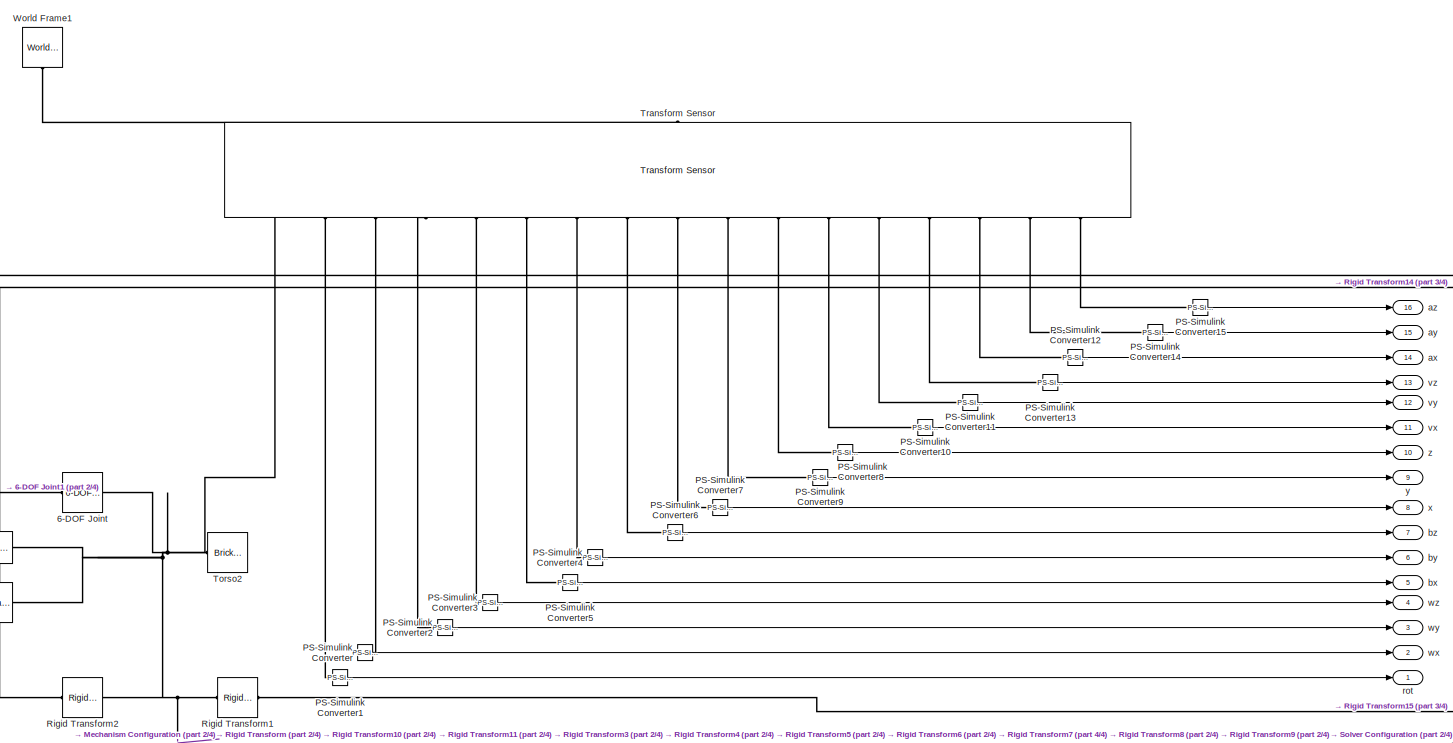
[diagram: Subsystem/Torso - part 1/4, top center region]
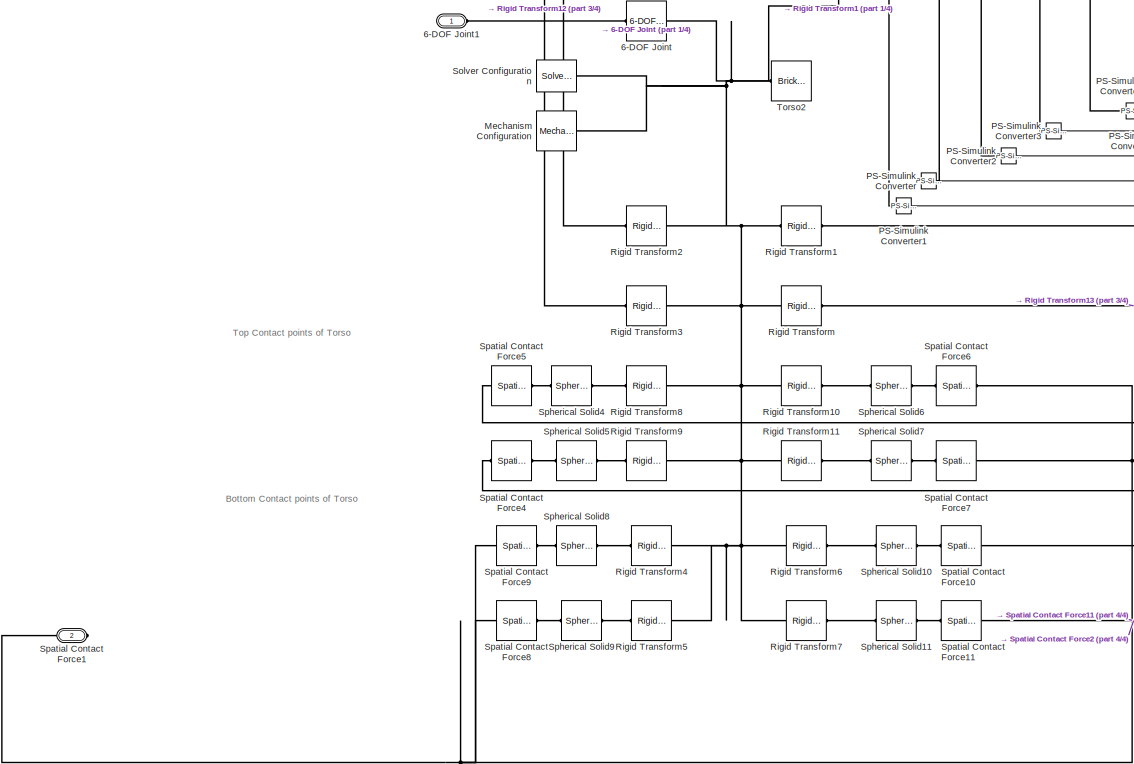
[diagram: Subsystem/Torso - part 2/4, bottom left region]
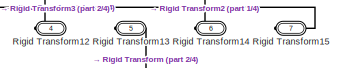
[diagram: Subsystem/Torso - part 3/4, middle right region]
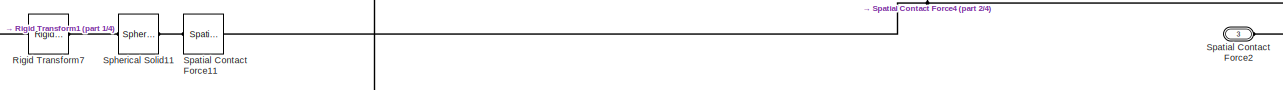
[diagram: Subsystem/Torso - part 4/4, bottom center region]
BLOCK [SubSystem] Subsystem/Torso
  Ports = [0, 16, 0, 0, 0, 2, 5]
  RequestExecContextInheritance = off
BLOCK [Reference] Subsystem/Torso/6-DOF Joint  REF=sm_lib/Joints/6-DOF Joint
  Ports = [0, 0, 0, 0, 0, 1, 1]
  SourceBlock = sm_lib/Joints/6-DOF Joint
  SourceProductBaseCode = MS
  SourceType = 6-DOF Joint
BLOCK [PMIOPort] Subsystem/Torso/6-DOF Joint1
  Side = Left
BLOCK [Reference] Subsystem/Torso/Mechanism Configuration  REF=sm_lib/Utilities/Mechanism
Configuration
  Ports = [0, 0, 0, 0, 0, 0, 1]
  SourceBlock = sm_lib/Utilities/Mechanism\nConfiguration
  SourceProductBaseCode = MS
  SourceType = Mechanism\nConfiguration
BLOCK [Reference] Subsystem/Torso/PS-Simulink Converter  REF=nesl_utility/PS-Simulink
Converter
  Ports = [0, 1, 0, 0, 0, 1]
  SourceBlock = nesl_utility/PS-Simulink\nConverter
  SourceProductBaseCode = SS
  SourceType = PS-Simulink\nConverter
BLOCK [Reference] Subsystem/Torso/PS-Simulink Converter1  REF=nesl_utility/PS-Simulink
Converter
  Ports = [0, 1, 0, 0, 0, 1]
  SourceBlock = nesl_utility/PS-Simulink\nConverter
  SourceProductBaseCode = SS
  SourceType = PS-Simulink\nConverter
BLOCK [Reference] Subsystem/Torso/PS-Simulink Converter10  REF=nesl_utility/PS-Simulink
Converter
  Ports = [0, 1, 0, 0, 0, 1]
  SourceBlock = nesl_utility/PS-Simulink\nConverter
  SourceProductBaseCode = SS
  SourceType = PS-Simulink\nConverter
BLOCK [Reference] Subsystem/Torso/PS-Simulink Converter11  REF=nesl_utility/PS-Simulink
Converter
  Ports = [0, 1, 0, 0, 0, 1]
  SourceBlock = nesl_utility/PS-Simulink\nConverter
  SourceProductBaseCode = SS
  SourceType = PS-Simulink\nConverter
BLOCK [Reference] Subsystem/Torso/PS-Simulink Converter12  REF=nesl_utility/PS-Simulink
Converter
  Ports = [0, 1, 0, 0, 0, 1]
  SourceBlock = nesl_utility/PS-Simulink\nConverter
  SourceProductBaseCode = SS
  SourceType = PS-Simulink\nConverter
BLOCK [Reference] Subsystem/Torso/PS-Simulink Converter13  REF=nesl_utility/PS-Simulink
Converter
  Ports = [0, 1, 0, 0, 0, 1]
  SourceBlock = nesl_utility/PS-Simulink\nConverter
  SourceProductBaseCode = SS
  SourceType = PS-Simulink\nConverter
BLOCK [Reference] Subsystem/Torso/PS-Simulink Converter14  REF=nesl_utility/PS-Simulink
Converter
  Ports = [0, 1, 0, 0, 0, 1]
  SourceBlock = nesl_utility/PS-Simulink\nConverter
  SourceProductBaseCode = SS
  SourceType = PS-Simulink\nConverter
BLOCK [Reference] Subsystem/Torso/PS-Simulink Converter15  REF=nesl_utility/PS-Simulink
Converter
  Ports = [0, 1, 0, 0, 0, 1]
  SourceBlock = nesl_utility/PS-Simulink\nConverter
  SourceProductBaseCode = SS
  SourceType = PS-Simulink\nConverter
BLOCK [Reference] Subsystem/Torso/PS-Simulink Converter2  REF=nesl_utility/PS-Simulink
Converter
  Ports = [0, 1, 0, 0, 0, 1]
  SourceBlock = nesl_utility/PS-Simulink\nConverter
  SourceProductBaseCode = SS
  SourceType = PS-Simulink\nConverter
BLOCK [Reference] Subsystem/Torso/PS-Simulink Converter3  REF=nesl_utility/PS-Simulink
Converter
  Ports = [0, 1, 0, 0, 0, 1]
  SourceBlock = nesl_utility/PS-Simulink\nConverter
  SourceProductBaseCode = SS
  SourceType = PS-Simulink\nConverter
BLOCK [Reference] Subsystem/Torso/PS-Simulink Converter4  REF=nesl_utility/PS-Simulink
Converter
  Ports = [0, 1, 0, 0, 0, 1]
  SourceBlock = nesl_utility/PS-Simulink\nConverter
  SourceProductBaseCode = SS
  SourceType = PS-Simulink\nConverter
BLOCK [Reference] Subsystem/Torso/PS-Simulink Converter5  REF=nesl_utility/PS-Simulink
Converter
  Ports = [0, 1, 0, 0, 0, 1]
  SourceBlock = nesl_utility/PS-Simulink\nConverter
  SourceProductBaseCode = SS
  SourceType = PS-Simulink\nConverter
BLOCK [Reference] Subsystem/Torso/PS-Simulink Converter6  REF=nesl_utility/PS-Simulink
Converter
  Ports = [0, 1, 0, 0, 0, 1]
  SourceBlock = nesl_utility/PS-Simulink\nConverter
  SourceProductBaseCode = SS
  SourceType = PS-Simulink\nConverter
BLOCK [Reference] Subsystem/Torso/PS-Simulink Converter7  REF=nesl_utility/PS-Simulink
Converter
  Ports = [0, 1, 0, 0, 0, 1]
  SourceBlock = nesl_utility/PS-Simulink\nConverter
  SourceProductBaseCode = SS
  SourceType = PS-Simulink\nConverter
BLOCK [Reference] Subsystem/Torso/PS-Simulink Converter8  REF=nesl_utility/PS-Simulink
Converter
  Ports = [0, 1, 0, 0, 0, 1]
  SourceBlock = nesl_utility/PS-Simulink\nConverter
  SourceProductBaseCode = SS
  SourceType = PS-Simulink\nConverter
BLOCK [Reference] Subsystem/Torso/PS-Simulink Converter9  REF=nesl_utility/PS-Simulink
Converter
  Ports = [0, 1, 0, 0, 0, 1]
  SourceBlock = nesl_utility/PS-Simulink\nConverter
  SourceProductBaseCode = SS
  SourceType = PS-Simulink\nConverter
BLOCK [Reference] Subsystem/Torso/Rigid Transform  REF=sm_lib/Frames and
Transforms/Rigid
Transform
  Ports = [0, 0, 0, 0, 0, 1, 1]
  SourceBlock = sm_lib/Frames and\nTransforms/Rigid\nTransform
  SourceProductBaseCode = MS
  SourceType = Rigid\nTransform
BLOCK [Reference] Subsystem/Torso/Rigid Transform1  REF=sm_lib/Frames and
Transforms/Rigid
Transform
  Ports = [0, 0, 0, 0, 0, 1, 1]
  SourceBlock = sm_lib/Frames and\nTransforms/Rigid\nTransform
  SourceProductBaseCode = MS
  SourceType = Rigid\nTransform
BLOCK [Reference] Subsystem/Torso/Rigid Transform10  REF=sm_lib/Frames and
Transforms/Rigid
Transform
  Ports = [0, 0, 0, 0, 0, 1, 1]
  SourceBlock = sm_lib/Frames and\nTransforms/Rigid\nTransform
  SourceProductBaseCode = MS
  SourceType = Rigid\nTransform
BLOCK [Reference] Subsystem/Torso/Rigid Transform11  REF=sm_lib/Frames and
Transforms/Rigid
Transform
  Ports = [0, 0, 0, 0, 0, 1, 1]
  SourceBlock = sm_lib/Frames and\nTransforms/Rigid\nTransform
  SourceProductBaseCode = MS
  SourceType = Rigid\nTransform
BLOCK [PMIOPort] Subsystem/Torso/Rigid Transform12
  Port = 4
  Side = Right
BLOCK [PMIOPort] Subsystem/Torso/Rigid Transform13
  Port = 5
  Side = Right
BLOCK [PMIOPort] Subsystem/Torso/Rigid Transform14
  Port = 6
  Side = Right
BLOCK [PMIOPort] Subsystem/Torso/Rigid Transform15
  Port = 7
  Side = Right
BLOCK [Reference] Subsystem/Torso/Rigid Transform2  REF=sm_lib/Frames and
Transforms/Rigid
Transform
  Ports = [0, 0, 0, 0, 0, 1, 1]
  SourceBlock = sm_lib/Frames and\nTransforms/Rigid\nTransform
  SourceProductBaseCode = MS
  SourceType = Rigid\nTransform
BLOCK [Reference] Subsystem/Torso/Rigid Transform3  REF=sm_lib/Frames and
Transforms/Rigid
Transform
  Ports = [0, 0, 0, 0, 0, 1, 1]
  SourceBlock = sm_lib/Frames and\nTransforms/Rigid\nTransform
  SourceProductBaseCode = MS
  SourceType = Rigid\nTransform
BLOCK [Reference] Subsystem/Torso/Rigid Transform4  REF=sm_lib/Frames and
Transforms/Rigid
Transform
  Ports = [0, 0, 0, 0, 0, 1, 1]
  SourceBlock = sm_lib/Frames and\nTransforms/Rigid\nTransform
  SourceProductBaseCode = MS
  SourceType = Rigid\nTransform
BLOCK [Reference] Subsystem/Torso/Rigid Transform5  REF=sm_lib/Frames and
Transforms/Rigid
Transform
  Ports = [0, 0, 0, 0, 0, 1, 1]
  SourceBlock = sm_lib/Frames and\nTransforms/Rigid\nTransform
  SourceProductBaseCode = MS
  SourceType = Rigid\nTransform
BLOCK [Reference] Subsystem/Torso/Rigid Transform6  REF=sm_lib/Frames and
Transforms/Rigid
Transform
  Ports = [0, 0, 0, 0, 0, 1, 1]
  SourceBlock = sm_lib/Frames and\nTransforms/Rigid\nTransform
  SourceProductBaseCode = MS
  SourceType = Rigid\nTransform
BLOCK [Reference] Subsystem/Torso/Rigid Transform7  REF=sm_lib/Frames and
Transforms/Rigid
Transform
  Ports = [0, 0, 0, 0, 0, 1, 1]
  SourceBlock = sm_lib/Frames and\nTransforms/Rigid\nTransform
  SourceProductBaseCode = MS
  SourceType = Rigid\nTransform
BLOCK [Reference] Subsystem/Torso/Rigid Transform8  REF=sm_lib/Frames and
Transforms/Rigid
Transform
  Ports = [0, 0, 0, 0, 0, 1, 1]
  SourceBlock = sm_lib/Frames and\nTransforms/Rigid\nTransform
  SourceProductBaseCode = MS
  SourceType = Rigid\nTransform
BLOCK [Reference] Subsystem/Torso/Rigid Transform9  REF=sm_lib/Frames and
Transforms/Rigid
Transform
  Ports = [0, 0, 0, 0, 0, 1, 1]
  SourceBlock = sm_lib/Frames and\nTransforms/Rigid\nTransform
  SourceProductBaseCode = MS
  SourceType = Rigid\nTransform
BLOCK [Reference] Subsystem/Torso/Solver Configuration  REF=nesl_utility/Solver
Configuration
  Ports = [0, 0, 0, 0, 0, 0, 1]
  SourceBlock = nesl_utility/Solver\nConfiguration
  SourceProductBaseCode = SS
  SourceType = Solver\nConfiguration
BLOCK [PMIOPort] Subsystem/Torso/Spatial Contact Force1
  Port = 2
  Side = Right
BLOCK [Reference] Subsystem/Torso/Spatial Contact Force10  REF=sm_lib/Forces and
Torques/Spatial
Contact Force
  Ports = [0, 0, 0, 0, 0, 1, 1]
  SourceBlock = sm_lib/Forces and\nTorques/Spatial\nContact Force
  SourceProductBaseCode = MS
  SourceType = Spatial\nContact Force
BLOCK [Reference] Subsystem/Torso/Spatial Contact Force11  REF=sm_lib/Forces and
Torques/Spatial
Contact Force
  Ports = [0, 0, 0, 0, 0, 1, 1]
  SourceBlock = sm_lib/Forces and\nTorques/Spatial\nContact Force
  SourceProductBaseCode = MS
  SourceType = Spatial\nContact Force
BLOCK [PMIOPort] Subsystem/Torso/Spatial Contact Force2
  Port = 3
  Side = Left
BLOCK [Reference] Subsystem/Torso/Spatial Contact Force4  REF=sm_lib/Forces and
Torques/Spatial
Contact Force
  Ports = [0, 0, 0, 0, 0, 1, 1]
  SourceBlock = sm_lib/Forces and\nTorques/Spatial\nContact Force
  SourceProductBaseCode = MS
  SourceType = Spatial\nContact Force
BLOCK [Reference] Subsystem/Torso/Spatial Contact Force5  REF=sm_lib/Forces and
Torques/Spatial
Contact Force
  Ports = [0, 0, 0, 0, 0, 1, 1]
  SourceBlock = sm_lib/Forces and\nTorques/Spatial\nContact Force
  SourceProductBaseCode = MS
  SourceType = Spatial\nContact Force
BLOCK [Reference] Subsystem/Torso/Spatial Contact Force6  REF=sm_lib/Forces and
Torques/Spatial
Contact Force
  Ports = [0, 0, 0, 0, 0, 1, 1]
  SourceBlock = sm_lib/Forces and\nTorques/Spatial\nContact Force
  SourceProductBaseCode = MS
  SourceType = Spatial\nContact Force
BLOCK [Reference] Subsystem/Torso/Spatial Contact Force7  REF=sm_lib/Forces and
Torques/Spatial
Contact Force
  Ports = [0, 0, 0, 0, 0, 1, 1]
  SourceBlock = sm_lib/Forces and\nTorques/Spatial\nContact Force
  SourceProductBaseCode = MS
  SourceType = Spatial\nContact Force
BLOCK [Reference] Subsystem/Torso/Spatial Contact Force8  REF=sm_lib/Forces and
Torques/Spatial
Contact Force
  Ports = [0, 0, 0, 0, 0, 1, 1]
  SourceBlock = sm_lib/Forces and\nTorques/Spatial\nContact Force
  SourceProductBaseCode = MS
  SourceType = Spatial\nContact Force
BLOCK [Reference] Subsystem/Torso/Spatial Contact Force9  REF=sm_lib/Forces and
Torques/Spatial
Contact Force
  Ports = [0, 0, 0, 0, 0, 1, 1]
  SourceBlock = sm_lib/Forces and\nTorques/Spatial\nContact Force
  SourceProductBaseCode = MS
  SourceType = Spatial\nContact Force
BLOCK [Reference] Subsystem/Torso/Spherical Solid10  REF=sm_lib/Body Elements/Spherical Solid
  Ports = [0, 0, 0, 0, 0, 1, 1]
  SourceBlock = sm_lib/Body Elements/Spherical Solid
  SourceProductBaseCode = MS
  SourceType = Spherical Solid
BLOCK [Reference] Subsystem/Torso/Spherical Solid11  REF=sm_lib/Body Elements/Spherical Solid
  Ports = [0, 0, 0, 0, 0, 1, 1]
  SourceBlock = sm_lib/Body Elements/Spherical Solid
  SourceProductBaseCode = MS
  SourceType = Spherical Solid
BLOCK [Reference] Subsystem/Torso/Spherical Solid4  REF=sm_lib/Body Elements/Spherical Solid
  Ports = [0, 0, 0, 0, 0, 1, 1]
  SourceBlock = sm_lib/Body Elements/Spherical Solid
  SourceProductBaseCode = MS
  SourceType = Spherical Solid
BLOCK [Reference] Subsystem/Torso/Spherical Solid5  REF=sm_lib/Body Elements/Spherical Solid
  Ports = [0, 0, 0, 0, 0, 1, 1]
  SourceBlock = sm_lib/Body Elements/Spherical Solid
  SourceProductBaseCode = MS
  SourceType = Spherical Solid
BLOCK [Reference] Subsystem/Torso/Spherical Solid6  REF=sm_lib/Body Elements/Spherical Solid
  Ports = [0, 0, 0, 0, 0, 1, 1]
  SourceBlock = sm_lib/Body Elements/Spherical Solid
  SourceProductBaseCode = MS
  SourceType = Spherical Solid
BLOCK [Reference] Subsystem/Torso/Spherical Solid7  REF=sm_lib/Body Elements/Spherical Solid
  Ports = [0, 0, 0, 0, 0, 1, 1]
  SourceBlock = sm_lib/Body Elements/Spherical Solid
  SourceProductBaseCode = MS
  SourceType = Spherical Solid
BLOCK [Reference] Subsystem/Torso/Spherical Solid8  REF=sm_lib/Body Elements/Spherical Solid
  Ports = [0, 0, 0, 0, 0, 1, 1]
  SourceBlock = sm_lib/Body Elements/Spherical Solid
  SourceProductBaseCode = MS
  SourceType = Spherical Solid
BLOCK [Reference] Subsystem/Torso/Spherical Solid9  REF=sm_lib/Body Elements/Spherical Solid
  Ports = [0, 0, 0, 0, 0, 1, 1]
  SourceBlock = sm_lib/Body Elements/Spherical Solid
  SourceProductBaseCode = MS
  SourceType = Spherical Solid
BLOCK [Reference] Subsystem/Torso/Torso2  REF=sm_lib/Body Elements/Brick Solid
  NameLocation = right
  Ports = [0, 0, 0, 0, 0, 0, 1]
  SourceBlock = sm_lib/Body Elements/Brick Solid
  SourceProductBaseCode = MS
  SourceType = Brick Solid
BLOCK [Reference] Subsystem/Torso/Transform Sensor  REF=sm_lib/Frames and
Transforms/Transform
Sensor
  NameLocation = left
  Ports = [0, 0, 0, 0, 0, 1, 17]
  SourceBlock = sm_lib/Frames and\nTransforms/Transform\nSensor
  SourceProductBaseCode = MS
  SourceType = Transform\nSensor
BLOCK [Reference] Subsystem/Torso/World Frame1  REF=sm_lib/Frames and
Transforms/World Frame
  NameLocation = left
  Ports = [0, 0, 0, 0, 0, 0, 1]
  SourceBlock = sm_lib/Frames and\nTransforms/World Frame
  SourceProductBaseCode = MS
  SourceType = World Frame
BLOCK [Outport] Subsystem/Torso/ax
  Port = 14
BLOCK [Outport] Subsystem/Torso/ay
  Port = 15
BLOCK [Outport] Subsystem/Torso/az
  Port = 16
BLOCK [Outport] Subsystem/Torso/bx
  Port = 5
BLOCK [Outport] Subsystem/Torso/by
  Port = 6
BLOCK [Outport] Subsystem/Torso/bz
  Port = 7
BLOCK [Outport] Subsystem/Torso/rot
BLOCK [Outport] Subsystem/Torso/vx
  Port = 11
BLOCK [Outport] Subsystem/Torso/vy
  Port = 12
BLOCK [Outport] Subsystem/Torso/vz
  Port = 13
BLOCK [Outport] Subsystem/Torso/wx
  Port = 2
BLOCK [Outport] Subsystem/Torso/wy
  Port = 3
BLOCK [Outport] Subsystem/Torso/wz
  Port = 4
BLOCK [Outport] Subsystem/Torso/x
  Port = 8
BLOCK [Outport] Subsystem/Torso/y
  Port = 9
BLOCK [Outport] Subsystem/Torso/z
  Port = 10
BLOCK [Reference] Subsystem/World Frame  REF=sm_lib/Frames and
Transforms/World Frame
  Ports = [0, 0, 0, 0, 0, 0, 1]
  SourceBlock = sm_lib/Frames and\nTransforms/World Frame
  SourceProductBaseCode = MS
  SourceType = World Frame
BLOCK [Outport] Subsystem/sensors
BLOCK [ToWorkspace] To Workspace
  Commented = on
  FixptAsFi = on
  MaxDataPoints = 200
  Ports = [1]
  SampleTime = 1
  SaveFormat = Timeseries
  VariableName = axis
BLOCK [ToWorkspace] To Workspace1
  Commented = on
  FixptAsFi = on
  MaxDataPoints = 200
  Ports = [1]
  SampleTime = 1
  SaveFormat = Timeseries
  VariableName = q
BLOCK [ToWorkspace] To Workspace2
  Commented = on
  FixptAsFi = on
  MaxDataPoints = 200
  Ports = [1]
  SampleTime = 1
  SaveFormat = Timeseries
  VariableName = distance_forward
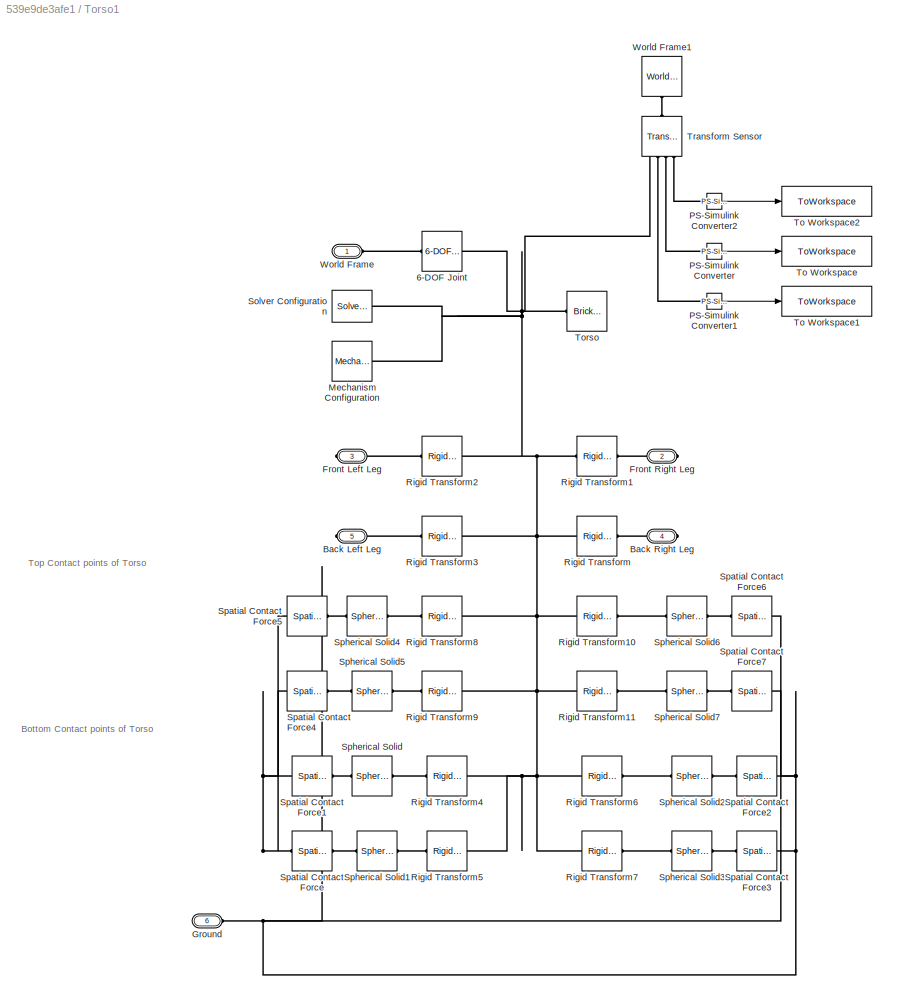
BLOCK [SubSystem] Torso1
  Commented = on
  PortSchema = {"entries":[{"content":{"sides":[{"content":{"connectorIds":[]},"type":"ConnectorPlacement.EquallySpacedRectSide","uuid":"a5f9388a-3463-4939-824e-c198da670e8b"},{"content":{"connectorIds":[],"side":"RIGHT"},"type":"ConnectorPlacement.EquallySpacedRectSide","uuid":"721d6b97-2d6f-40dc-acf2-829076b6800c"},{"content":{"connectorIds":["LConn1","LConn2"],"side":"TOP"},"type":"ConnectorPlacement.EquallyS...<+425ch>
  Ports = [0, 0, 0, 0, 0, 2, 4]
  RequestExecContextInheritance = off
BLOCK [Reference] Torso1/6-DOF Joint  REF=sm_lib/Joints/6-DOF Joint
  Ports = [0, 0, 0, 0, 0, 1, 1]
  SourceBlock = sm_lib/Joints/6-DOF Joint
  SourceProductBaseCode = MS
  SourceType = 6-DOF Joint
BLOCK [PMIOPort] Torso1/Back Left Leg
  Port = 5
  Side = Right
BLOCK [PMIOPort] Torso1/Back Right Leg
  Port = 4
  Side = Right
BLOCK [PMIOPort] Torso1/Front Left Leg
  Port = 3
  Side = Right
BLOCK [PMIOPort] Torso1/Front Right Leg
  Port = 2
  Side = Right
BLOCK [PMIOPort] Torso1/Ground
  Port = 6
  Side = Left
BLOCK [Reference] Torso1/Mechanism Configuration  REF=sm_lib/Utilities/Mechanism
Configuration
  Ports = [0, 0, 0, 0, 0, 0, 1]
  SourceBlock = sm_lib/Utilities/Mechanism\nConfiguration
  SourceProductBaseCode = MS
  SourceType = Mechanism\nConfiguration
BLOCK [Reference] Torso1/PS-Simulink Converter  REF=nesl_utility/PS-Simulink
Converter
  Ports = [0, 1, 0, 0, 0, 1]
  SourceBlock = nesl_utility/PS-Simulink\nConverter
  SourceProductBaseCode = SS
  SourceType = PS-Simulink\nConverter
BLOCK [Reference] Torso1/PS-Simulink Converter1  REF=nesl_utility/PS-Simulink
Converter
  Ports = [0, 1, 0, 0, 0, 1]
  SourceBlock = nesl_utility/PS-Simulink\nConverter
  SourceProductBaseCode = SS
  SourceType = PS-Simulink\nConverter
BLOCK [Reference] Torso1/PS-Simulink Converter2  REF=nesl_utility/PS-Simulink
Converter
  Ports = [0, 1, 0, 0, 0, 1]
  SourceBlock = nesl_utility/PS-Simulink\nConverter
  SourceProductBaseCode = SS
  SourceType = PS-Simulink\nConverter
BLOCK [Reference] Torso1/Rigid Transform  REF=sm_lib/Frames and
Transforms/Rigid
Transform
  Ports = [0, 0, 0, 0, 0, 1, 1]
  SourceBlock = sm_lib/Frames and\nTransforms/Rigid\nTransform
  SourceProductBaseCode = MS
  SourceType = Rigid\nTransform
BLOCK [Reference] Torso1/Rigid Transform1  REF=sm_lib/Frames and
Transforms/Rigid
Transform
  Ports = [0, 0, 0, 0, 0, 1, 1]
  SourceBlock = sm_lib/Frames and\nTransforms/Rigid\nTransform
  SourceProductBaseCode = MS
  SourceType = Rigid\nTransform
BLOCK [Reference] Torso1/Rigid Transform10  REF=sm_lib/Frames and
Transforms/Rigid
Transform
  Ports = [0, 0, 0, 0, 0, 1, 1]
  SourceBlock = sm_lib/Frames and\nTransforms/Rigid\nTransform
  SourceProductBaseCode = MS
  SourceType = Rigid\nTransform
BLOCK [Reference] Torso1/Rigid Transform11  REF=sm_lib/Frames and
Transforms/Rigid
Transform
  Ports = [0, 0, 0, 0, 0, 1, 1]
  SourceBlock = sm_lib/Frames and\nTransforms/Rigid\nTransform
  SourceProductBaseCode = MS
  SourceType = Rigid\nTransform
BLOCK [Reference] Torso1/Rigid Transform2  REF=sm_lib/Frames and
Transforms/Rigid
Transform
  Ports = [0, 0, 0, 0, 0, 1, 1]
  SourceBlock = sm_lib/Frames and\nTransforms/Rigid\nTransform
  SourceProductBaseCode = MS
  SourceType = Rigid\nTransform
BLOCK [Reference] Torso1/Rigid Transform3  REF=sm_lib/Frames and
Transforms/Rigid
Transform
  Ports = [0, 0, 0, 0, 0, 1, 1]
  SourceBlock = sm_lib/Frames and\nTransforms/Rigid\nTransform
  SourceProductBaseCode = MS
  SourceType = Rigid\nTransform
BLOCK [Reference] Torso1/Rigid Transform4  REF=sm_lib/Frames and
Transforms/Rigid
Transform
  Ports = [0, 0, 0, 0, 0, 1, 1]
  SourceBlock = sm_lib/Frames and\nTransforms/Rigid\nTransform
  SourceProductBaseCode = MS
  SourceType = Rigid\nTransform
BLOCK [Reference] Torso1/Rigid Transform5  REF=sm_lib/Frames and
Transforms/Rigid
Transform
  Ports = [0, 0, 0, 0, 0, 1, 1]
  SourceBlock = sm_lib/Frames and\nTransforms/Rigid\nTransform
  SourceProductBaseCode = MS
  SourceType = Rigid\nTransform
BLOCK [Reference] Torso1/Rigid Transform6  REF=sm_lib/Frames and
Transforms/Rigid
Transform
  Ports = [0, 0, 0, 0, 0, 1, 1]
  SourceBlock = sm_lib/Frames and\nTransforms/Rigid\nTransform
  SourceProductBaseCode = MS
  SourceType = Rigid\nTransform
BLOCK [Reference] Torso1/Rigid Transform7  REF=sm_lib/Frames and
Transforms/Rigid
Transform
  Ports = [0, 0, 0, 0, 0, 1, 1]
  SourceBlock = sm_lib/Frames and\nTransforms/Rigid\nTransform
  SourceProductBaseCode = MS
  SourceType = Rigid\nTransform
BLOCK [Reference] Torso1/Rigid Transform8  REF=sm_lib/Frames and
Transforms/Rigid
Transform
  Ports = [0, 0, 0, 0, 0, 1, 1]
  SourceBlock = sm_lib/Frames and\nTransforms/Rigid\nTransform
  SourceProductBaseCode = MS
  SourceType = Rigid\nTransform
BLOCK [Reference] Torso1/Rigid Transform9  REF=sm_lib/Frames and
Transforms/Rigid
Transform
  Ports = [0, 0, 0, 0, 0, 1, 1]
  SourceBlock = sm_lib/Frames and\nTransforms/Rigid\nTransform
  SourceProductBaseCode = MS
  SourceType = Rigid\nTransform
BLOCK [Reference] Torso1/Solver Configuration  REF=nesl_utility/Solver
Configuration
  Ports = [0, 0, 0, 0, 0, 0, 1]
  SourceBlock = nesl_utility/Solver\nConfiguration
  SourceProductBaseCode = SS
  SourceType = Solver\nConfiguration
BLOCK [Reference] Torso1/Spatial Contact Force  REF=sm_lib/Forces and
Torques/Spatial
Contact Force
  Ports = [0, 0, 0, 0, 0, 1, 1]
  SourceBlock = sm_lib/Forces and\nTorques/Spatial\nContact Force
  SourceProductBaseCode = MS
  SourceType = Spatial\nContact Force
BLOCK [Reference] Torso1/Spatial Contact Force1  REF=sm_lib/Forces and
Torques/Spatial
Contact Force
  Ports = [0, 0, 0, 0, 0, 1, 1]
  SourceBlock = sm_lib/Forces and\nTorques/Spatial\nContact Force
  SourceProductBaseCode = MS
  SourceType = Spatial\nContact Force
BLOCK [Reference] Torso1/Spatial Contact Force2  REF=sm_lib/Forces and
Torques/Spatial
Contact Force
  Ports = [0, 0, 0, 0, 0, 1, 1]
  SourceBlock = sm_lib/Forces and\nTorques/Spatial\nContact Force
  SourceProductBaseCode = MS
  SourceType = Spatial\nContact Force
BLOCK [Reference] Torso1/Spatial Contact Force3  REF=sm_lib/Forces and
Torques/Spatial
Contact Force
  Ports = [0, 0, 0, 0, 0, 1, 1]
  SourceBlock = sm_lib/Forces and\nTorques/Spatial\nContact Force
  SourceProductBaseCode = MS
  SourceType = Spatial\nContact Force
BLOCK [Reference] Torso1/Spatial Contact Force4  REF=sm_lib/Forces and
Torques/Spatial
Contact Force
  Ports = [0, 0, 0, 0, 0, 1, 1]
  SourceBlock = sm_lib/Forces and\nTorques/Spatial\nContact Force
  SourceProductBaseCode = MS
  SourceType = Spatial\nContact Force
BLOCK [Reference] Torso1/Spatial Contact Force5  REF=sm_lib/Forces and
Torques/Spatial
Contact Force
  Ports = [0, 0, 0, 0, 0, 1, 1]
  SourceBlock = sm_lib/Forces and\nTorques/Spatial\nContact Force
  SourceProductBaseCode = MS
  SourceType = Spatial\nContact Force
BLOCK [Reference] Torso1/Spatial Contact Force6  REF=sm_lib/Forces and
Torques/Spatial
Contact Force
  Ports = [0, 0, 0, 0, 0, 1, 1]
  SourceBlock = sm_lib/Forces and\nTorques/Spatial\nContact Force
  SourceProductBaseCode = MS
  SourceType = Spatial\nContact Force
BLOCK [Reference] Torso1/Spatial Contact Force7  REF=sm_lib/Forces and
Torques/Spatial
Contact Force
  Ports = [0, 0, 0, 0, 0, 1, 1]
  SourceBlock = sm_lib/Forces and\nTorques/Spatial\nContact Force
  SourceProductBaseCode = MS
  SourceType = Spatial\nContact Force
BLOCK [Reference] Torso1/Spherical Solid  REF=sm_lib/Body Elements/Spherical Solid
  Ports = [0, 0, 0, 0, 0, 1, 1]
  SourceBlock = sm_lib/Body Elements/Spherical Solid
  SourceProductBaseCode = MS
  SourceType = Spherical Solid
BLOCK [Reference] Torso1/Spherical Solid1  REF=sm_lib/Body Elements/Spherical Solid
  Ports = [0, 0, 0, 0, 0, 1, 1]
  SourceBlock = sm_lib/Body Elements/Spherical Solid
  SourceProductBaseCode = MS
  SourceType = Spherical Solid
BLOCK [Reference] Torso1/Spherical Solid2  REF=sm_lib/Body Elements/Spherical Solid
  Ports = [0, 0, 0, 0, 0, 1, 1]
  SourceBlock = sm_lib/Body Elements/Spherical Solid
  SourceProductBaseCode = MS
  SourceType = Spherical Solid
BLOCK [Reference] Torso1/Spherical Solid3  REF=sm_lib/Body Elements/Spherical Solid
  Ports = [0, 0, 0, 0, 0, 1, 1]
  SourceBlock = sm_lib/Body Elements/Spherical Solid
  SourceProductBaseCode = MS
  SourceType = Spherical Solid
BLOCK [Reference] Torso1/Spherical Solid4  REF=sm_lib/Body Elements/Spherical Solid
  Ports = [0, 0, 0, 0, 0, 1, 1]
  SourceBlock = sm_lib/Body Elements/Spherical Solid
  SourceProductBaseCode = MS
  SourceType = Spherical Solid
BLOCK [Reference] Torso1/Spherical Solid5  REF=sm_lib/Body Elements/Spherical Solid
  Ports = [0, 0, 0, 0, 0, 1, 1]
  SourceBlock = sm_lib/Body Elements/Spherical Solid
  SourceProductBaseCode = MS
  SourceType = Spherical Solid
BLOCK [Reference] Torso1/Spherical Solid6  REF=sm_lib/Body Elements/Spherical Solid
  Ports = [0, 0, 0, 0, 0, 1, 1]
  SourceBlock = sm_lib/Body Elements/Spherical Solid
  SourceProductBaseCode = MS
  SourceType = Spherical Solid
BLOCK [Reference] Torso1/Spherical Solid7  REF=sm_lib/Body Elements/Spherical Solid
  Ports = [0, 0, 0, 0, 0, 1, 1]
  SourceBlock = sm_lib/Body Elements/Spherical Solid
  SourceProductBaseCode = MS
  SourceType = Spherical Solid
BLOCK [ToWorkspace] Torso1/To Workspace
  FixptAsFi = on
  MaxDataPoints = 200
  Ports = [1]
  SampleTime = 1
  SaveFormat = Timeseries
  VariableName = axis
BLOCK [ToWorkspace] Torso1/To Workspace1
  FixptAsFi = on
  MaxDataPoints = 200
  Ports = [1]
  SampleTime = 1
  SaveFormat = Timeseries
  VariableName = q
BLOCK [ToWorkspace] Torso1/To Workspace2
  FixptAsFi = on
  MaxDataPoints = 200
  Ports = [1]
  SampleTime = 1
  SaveFormat = Timeseries
  VariableName = distance_forward
BLOCK [Reference] Torso1/Torso  REF=sm_lib/Body Elements/Brick Solid
  NameLocation = right
  Ports = [0, 0, 0, 0, 0, 0, 1]
  SourceBlock = sm_lib/Body Elements/Brick Solid
  SourceProductBaseCode = MS
  SourceType = Brick Solid
BLOCK [Reference] Torso1/Transform Sensor  REF=sm_lib/Frames and
Transforms/Transform
Sensor
  NameLocation = left
  Ports = [0, 0, 0, 0, 0, 1, 4]
  SourceBlock = sm_lib/Frames and\nTransforms/Transform\nSensor
  SourceProductBaseCode = MS
  SourceType = Transform\nSensor
BLOCK [PMIOPort] Torso1/World Frame
  Side = Left
BLOCK [Reference] Torso1/World Frame1  REF=sm_lib/Frames and
Transforms/World Frame
  NameLocation = left
  Ports = [0, 0, 0, 0, 0, 0, 1]
  SourceBlock = sm_lib/Frames and\nTransforms/World Frame
  SourceProductBaseCode = MS
  SourceType = World Frame
BLOCK [UnitDelay] Unit Delay
  HasFrameUpgradeWarning = on
  SampleTime = -1
BLOCK [UnitDelay] Unit Delay1
  HasFrameUpgradeWarning = on
  SampleTime = -1
ANNOTATION Calculate Reward: Reward function inspired by "Emergence of Locomotion Behaviours in Rich Environments" Google DeepMind, 2017 https://arxiv.org/pdf/1707.02286.pdf
ANNOTATION Subsystem/Torso: Bottom Contact points of Torso
ANNOTATION Subsystem/Torso: Top Contact points of Torso
ANNOTATION Torso1: Bottom Contact points of Torso
ANNOTATION Torso1: Top Contact points of Torso
LINE Calculate Observation/Bus Selector:1 -> Calculate Observation/Mux:1
LINE Calculate Observation/Bus Selector:10 -> Calculate Observation/Mux:10
LINE Calculate Observation/Bus Selector:11 -> Calculate Observation/Mux:11
LINE Calculate Observation/Bus Selector:12 -> Calculate Observation/Subtract Initial Height:1
LINE Calculate Observation/Bus Selector:13 -> Calculate Observation/Mux:13
LINE Calculate Observation/Bus Selector:14 -> Calculate Observation/Mux:14
LINE Calculate Observation/Bus Selector:15 -> Calculate Observation/Mux:15
LINE Calculate Observation/Bus Selector:16 -> Calculate Observation/Mux:16
LINE Calculate Observation/Bus Selector:17 -> Calculate Observation/Mux:17
LINE Calculate Observation/Bus Selector:18 -> Calculate Observation/Mux:18
LINE Calculate Observation/Bus Selector:2 -> Calculate Observation/Mux:2
LINE Calculate Observation/Bus Selector:3 -> Calculate Observation/Mux:3
LINE Calculate Observation/Bus Selector:4 -> Calculate Observation/Mux:4
LINE Calculate Observation/Bus Selector:5 -> Calculate Observation/Mux:5
LINE Calculate Observation/Bus Selector:6 -> Calculate Observation/Mux:6
LINE Calculate Observation/Bus Selector:7 -> Calculate Observation/Mux:7
LINE Calculate Observation/Bus Selector:8 -> Calculate Observation/Mux:8
LINE Calculate Observation/Bus Selector:9 -> Calculate Observation/Mux:9
LINE Calculate Observation/Mux:1 -> Calculate Observation/Rate Transition:1
LINE Calculate Observation/Rate Transition:1 -> Calculate Observation/observation:1
LINE Calculate Observation/Scale Height:1 -> Calculate Observation/Mux:12
LINE Calculate Observation/Subtract Initial Height:1 -> Calculate Observation/Scale Height:1
LINE Calculate Observation/meas:1 -> Calculate Observation/Bus Selector:1
LINE Calculate Observation/prevAct:1 -> Calculate Observation/Mux:19
LINE Calculate Observation:1 -> RL Agent:1
NET Calculate Reward/Add1:1 -> Calculate Reward/Add2:2, Calculate Reward/Individual Rewards:2
LINE Calculate Reward/Add2:1 -> Calculate Reward/reward:1
LINE Calculate Reward/Bus Selector:1 -> Calculate Reward/Forward Reward Scaling:1
LINE Calculate Reward/Bus Selector:2 -> Calculate Reward/Forward Reward Scaling1:1
LINE Calculate Reward/Bus Selector:3 -> Calculate Reward/Square3:1
LINE Calculate Reward/Bus Selector:4 -> Calculate Reward/Subtract Initial Height:1
LINE Calculate Reward/Bus Selector:5 -> Calculate Reward/Square1:1
LINE Calculate Reward/Deviation Penalty Scaling Y:1 -> Calculate Reward/Add1:1
LINE Calculate Reward/Deviation Penalty Scaling Z1:1 -> Calculate Reward/Add1:3
LINE Calculate Reward/Deviation Penalty Scaling Z:1 -> Calculate Reward/Add1:2
LINE Calculate Reward/Discrete Derivative:1 -> Calculate Reward/Sum:1
NET Calculate Reward/Duration Reward:1 -> Calculate Reward/Add2:4, Calculate Reward/Individual Rewards:4
LINE Calculate Reward/Forward Reward Scaling1:1 -> Calculate Reward/Sum1:2
LINE Calculate Reward/Forward Reward Scaling:1 -> Calculate Reward/Sum1:1
LINE Calculate Reward/Rate Transition:1 -> Calculate Reward/Bus Selector:1
LINE Calculate Reward/Square1:1 -> Calculate Reward/Deviation Penalty Scaling Z1:1
LINE Calculate Reward/Square2:1 -> Calculate Reward/Sum of Elements:1
LINE Calculate Reward/Square3:1 -> Calculate Reward/Deviation Penalty Scaling Y:1
LINE Calculate Reward/Square4:1 -> Calculate Reward/Deviation Penalty Scaling Z:1
LINE Calculate Reward/Subtract Initial Height:1 -> Calculate Reward/Square4:1
LINE Calculate Reward/Sum of Elements:1 -> Calculate Reward/Torque Penalty Scaling:1
NET Calculate Reward/Sum1:1 -> Calculate Reward/Add2:1, Calculate Reward/Individual Rewards:1
LINE Calculate Reward/Sum:1 -> Calculate Reward/Square2:1
NET Calculate Reward/Torque Penalty Scaling:1 -> Calculate Reward/Add2:3, Calculate Reward/Individual Rewards:3
LINE Calculate Reward/meas:1 -> Calculate Reward/Rate Transition:1
NET Calculate Reward/prevAct:1 -> Calculate Reward/Discrete Derivative:1, Calculate Reward/Sum:2
LINE Calculate Reward:1 -> RL Agent:2
LINE Check if Done/Abs1:1 -> Check if Done/Compare To Constant1:1
LINE Check if Done/Abs2:1 -> Check if Done/Compare To Constant2:1
LINE Check if Done/Abs3:1 -> Check if Done/Detect Lateral Motion:1
LINE Check if Done/Abs4:1 -> Check if Done/Compare To Constant3:1
LINE Check if Done/Abs5:1 -> Check if Done/Compare To Constant4:1
LINE Check if Done/Abs6:1 -> Check if Done/Compare To Constant5:1
LINE Check if Done/Abs:1 -> Check if Done/Compare To Constant:1
LINE Check if Done/Bus Selector1:1 -> Check if Done/Detect Lateral Motion1:1
LINE Check if Done/Bus Selector1:2 -> Check if Done/Detect Off Track:1
NET Check if Done/Bus Selector1:3 -> Check if Done/Detect Fallen Robot1:1, Check if Done/Detect Jumping:1
LINE Check if Done/Bus Selector1:4 -> Check if Done/Abs4:1
LINE Check if Done/Bus Selector1:5 -> Check if Done/Abs5:1
LINE Check if Done/Bus Selector1:6 -> Check if Done/Abs6:1
LINE Check if Done/Bus Selector:1 -> Check if Done/Abs3:1
LINE Check if Done/Bus Selector:2 -> Check if Done/Detect Fallen Robot:1
LINE Check if Done/Bus Selector:3 -> Check if Done/Abs:1
LINE Check if Done/Bus Selector:4 -> Check if Done/Abs1:1
LINE Check if Done/Bus Selector:5 -> Check if Done/Abs2:1
LINE Check if Done/Compare To Constant1:1 -> Check if Done/Logical Operator:4
LINE Check if Done/Compare To Constant2:1 -> Check if Done/Logical Operator:5
LINE Check if Done/Compare To Constant3:1 -> Check if Done/Logical Operator1:5
LINE Check if Done/Compare To Constant4:1 -> Check if Done/Logical Operator1:6
LINE Check if Done/Compare To Constant5:1 -> Check if Done/Logical Operator1:7
LINE Check if Done/Compare To Constant:1 -> Check if Done/Logical Operator:3
LINE Check if Done/Detect Fallen Robot1:1 -> Check if Done/Logical Operator1:4
LINE Check if Done/Detect Fallen Robot:1 -> Check if Done/Logical Operator:2
LINE Check if Done/Detect Jumping:1 -> Check if Done/Logical Operator1:3
LINE Check if Done/Detect Lateral Motion1:1 -> Check if Done/Logical Operator1:1
LINE Check if Done/Detect Lateral Motion:1 -> Check if Done/Logical Operator:1
LINE Check if Done/Detect Off Track:1 -> Check if Done/Logical Operator1:2
LINE Check if Done/Logical Operator1:1 -> Check if Done/isdone:1
LINE Check if Done/Logical Operator:1 -> Check if Done/Rate Transition:1
LINE Check if Done/meas:1 -> Check if Done/Bus Selector1:1
LINE Check if Done:1 -> RL Agent:3
NET RL Agent:1 -> Subsystem:1, Unit Delay:1
LINE RL Agent:2 -> Cumulative Reward:1
LINE Subsystem/ Front Right Upper Leg/input0:1 -> Subsystem/ Front Right Upper Leg/Simulink-PS Converter:1
LINE Subsystem/Back Left Lower Leg/input0:1 -> Subsystem/Back Left Lower Leg/Simulink-PS Converter:1
LINE Subsystem/Back Left Upper Leg/input0:1 -> Subsystem/Back Left Upper Leg/Simulink-PS Converter:1
LINE Subsystem/Back Right Lower Leg/input0:1 -> Subsystem/Back Right Lower Leg/Simulink-PS Converter:1
LINE Subsystem/Back Right Upper Leg/input0:1 -> Subsystem/Back Right Upper Leg/Simulink-PS Converter:1
LINE Subsystem/Bus Creator:1 -> Subsystem/sensors:1
LINE Subsystem/Demux1:1 -> Subsystem/Bus Creator:1
LINE Subsystem/Demux1:2 -> Subsystem/Bus Creator:2
LINE Subsystem/Demux1:3 -> Subsystem/Bus Creator:3
LINE Subsystem/Demux:1 -> Subsystem/Back Left Lower Leg:1
LINE Subsystem/Demux:2 -> Subsystem/Back Left Upper Leg:1
LINE Subsystem/Demux:3 -> Subsystem/Back Right Lower Leg:1
LINE Subsystem/Demux:4 -> Subsystem/Back Right Upper Leg:1
LINE Subsystem/Demux:5 -> Subsystem/Front Left Lower Leg:1
LINE Subsystem/Demux:6 -> Subsystem/Front Left Upper Leg:1
LINE Subsystem/Demux:7 -> Subsystem/Front Right Lower Leg:1
LINE Subsystem/Demux:8 -> Subsystem/ Front Right Upper Leg:1
LINE Subsystem/Front Left Lower Leg/input0:1 -> Subsystem/Front Left Lower Leg/Simulink-PS Converter:1
LINE Subsystem/Front Left Upper Leg/input0:1 -> Subsystem/Front Left Upper Leg/Simulink-PS Converter:1
LINE Subsystem/Front Right Lower Leg/input0:1 -> Subsystem/Front Right Lower Leg/Simulink-PS Converter:1
LINE Subsystem/Joint Angles:1 -> Subsystem/Demux:1
LINE Subsystem/Rotation Matrix to Roll Pitch Yaw:1 -> Subsystem/Demux1:1
LINE Subsystem/Torso/PS-Simulink Converter10:1 -> Subsystem/Torso/vx:1
LINE Subsystem/Torso/PS-Simulink Converter11:1 -> Subsystem/Torso/vy:1
LINE Subsystem/Torso/PS-Simulink Converter12:1 -> Subsystem/Torso/ax:1
LINE Subsystem/Torso/PS-Simulink Converter13:1 -> Subsystem/Torso/vz:1
LINE Subsystem/Torso/PS-Simulink Converter14:1 -> Subsystem/Torso/ay:1
LINE Subsystem/Torso/PS-Simulink Converter15:1 -> Subsystem/Torso/az:1
LINE Subsystem/Torso/PS-Simulink Converter1:1 -> Subsystem/Torso/rot:1
LINE Subsystem/Torso/PS-Simulink Converter2:1 -> Subsystem/Torso/wy:1
LINE Subsystem/Torso/PS-Simulink Converter3:1 -> Subsystem/Torso/wz:1
LINE Subsystem/Torso/PS-Simulink Converter4:1 -> Subsystem/Torso/by:1
LINE Subsystem/Torso/PS-Simulink Converter5:1 -> Subsystem/Torso/bx:1
LINE Subsystem/Torso/PS-Simulink Converter6:1 -> Subsystem/Torso/bz:1
LINE Subsystem/Torso/PS-Simulink Converter7:1 -> Subsystem/Torso/x:1
LINE Subsystem/Torso/PS-Simulink Converter8:1 -> Subsystem/Torso/z:1
LINE Subsystem/Torso/PS-Simulink Converter9:1 -> Subsystem/Torso/y:1
LINE Subsystem/Torso/PS-Simulink Converter:1 -> Subsystem/Torso/wx:1
LINE Subsystem/Torso:1 -> Subsystem/Rotation Matrix to Roll Pitch Yaw:1
LINE Subsystem/Torso:10 -> Subsystem/Bus Creator:12
LINE Subsystem/Torso:11 -> Subsystem/Bus Creator:13
LINE Subsystem/Torso:12 -> Subsystem/Bus Creator:14
LINE Subsystem/Torso:13 -> Subsystem/Bus Creator:15
LINE Subsystem/Torso:14 -> Subsystem/Bus Creator:16
LINE Subsystem/Torso:15 -> Subsystem/Bus Creator:17
LINE Subsystem/Torso:16 -> Subsystem/Bus Creator:18
LINE Subsystem/Torso:2 -> Subsystem/Bus Creator:4
LINE Subsystem/Torso:3 -> Subsystem/Bus Creator:5
LINE Subsystem/Torso:4 -> Subsystem/Bus Creator:6
LINE Subsystem/Torso:5 -> Subsystem/Bus Creator:7
LINE Subsystem/Torso:6 -> Subsystem/Bus Creator:8
LINE Subsystem/Torso:7 -> Subsystem/Bus Creator:9
LINE Subsystem/Torso:8 -> Subsystem/Bus Creator:10
LINE Subsystem/Torso:9 -> Subsystem/Bus Creator:11
LINE Subsystem:1 -> Unit Delay1:1
LINE Torso1/PS-Simulink Converter1:1 -> Torso1/To Workspace1:1
LINE Torso1/PS-Simulink Converter2:1 -> Torso1/To Workspace2:1
LINE Torso1/PS-Simulink Converter:1 -> Torso1/To Workspace:1
NET Unit Delay1:1 -> Calculate Observation:1, Calculate Reward:1, Check if Done:1
NET Unit Delay:1 -> Calculate Observation:2, Calculate Reward:2
PNET net1: Subsystem/ Front Right Upper Leg/Brick Solid:RConn1 -- Subsystem/ Front Right Upper Leg/Rigid Transform1:LConn1 -- Subsystem/ Front Right Upper Leg/Rigid Transform2:LConn1 -- Subsystem/ Front Right Upper Leg/Rigid Transform3:LConn1 -- Subsystem/ Front Right Upper Leg/Rigid Transform4:LConn1 -- Subsystem/ Front Right Upper Leg/Rigid Transform:LConn1
PLINE Subsystem/ Front Right Upper Leg/Cylindrical Solid1:RConn1 -- Subsystem/ Front Right Upper Leg/Rigid Transform3:RConn1
PLINE Subsystem/ Front Right Upper Leg/Cylindrical Solid:RConn1 -- Subsystem/ Front Right Upper Leg/Rigid Transform2:RConn1
PLINE Subsystem/ Front Right Upper Leg/Ellipsoidal Solid:LConn1 -- Subsystem/ Front Right Upper Leg/Spatial Contact Force4:LConn1
PLINE Subsystem/ Front Right Upper Leg/Ellipsoidal Solid:RConn1 -- Subsystem/ Front Right Upper Leg/Rigid Transform4:RConn1
PLINE Subsystem/ Front Right Upper Leg/Revolute Joint1:RConn1 -- Subsystem/ Front Right Upper Leg/Revolute Joint:RConn1
PLINE Subsystem/ Front Right Upper Leg/Revolute Joint:LConn1 -- Subsystem/ Front Right Upper Leg/Rigid Transform:RConn1
PLINE Subsystem/ Front Right Upper Leg/Revolute Joint:LConn2 -- Subsystem/ Front Right Upper Leg/Simulink-PS Converter:RConn1
PLINE Subsystem/ Front Right Upper Leg/Rigid Transform1:RConn1 -- Subsystem/ Front Right Upper Leg/Rigid Transform5:RConn1
PLINE Subsystem/ Front Right Upper Leg/Spatial Contact Force1:RConn1 -- Subsystem/ Front Right Upper Leg/Spatial Contact Force4:RConn1
PLINE Subsystem/ Front Right Upper Leg:RConn1 -- Subsystem/Torso:RConn5
PNET net2: Subsystem/ Front Right Upper Leg:RConn2 -- Subsystem/Back Left Upper Leg:RConn1 -- Subsystem/Back Right Upper Leg:RConn3 -- Subsystem/Floor:LConn1 -- Subsystem/Front Left Upper Leg:RConn3 -- Subsystem/Spatial Contact Force1:RConn1 -- Subsystem/Spatial Contact Force2:RConn1 -- Subsystem/Spatial Contact Force3:RConn1 -- Subsystem/Spatial Contact Force:RConn1 -- Subsystem/Torso:LConn2 -- Subsystem/Torso:RConn1
PLINE Subsystem/ Front Right Upper Leg:RConn3 -- Subsystem/Front Right Lower Leg:RConn2
PNET net3: Subsystem/Back Left Lower Leg/Brick Solid:RConn1 -- Subsystem/Back Left Lower Leg/Rigid Transform1:LConn1 -- Subsystem/Back Left Lower Leg/Rigid Transform:LConn1
PLINE Subsystem/Back Left Lower Leg/Revolute Joint1:RConn1 -- Subsystem/Back Left Lower Leg/Revolute Joint:RConn1
PLINE Subsystem/Back Left Lower Leg/Revolute Joint:LConn1 -- Subsystem/Back Left Lower Leg/Rigid Transform:RConn1
PLINE Subsystem/Back Left Lower Leg/Revolute Joint:LConn2 -- Subsystem/Back Left Lower Leg/Simulink-PS Converter:RConn1
PLINE Subsystem/Back Left Lower Leg/Rigid Transform1:RConn1 -- Subsystem/Back Left Lower Leg/Rigid Transform2:RConn1
PLINE Subsystem/Back Left Lower Leg:RConn1 -- Subsystem/Spherical Solid1:RConn1
PLINE Subsystem/Back Left Lower Leg:RConn2 -- Subsystem/Back Left Upper Leg:RConn3
PNET net4: Subsystem/Back Left Upper Leg/Brick Solid:RConn1 -- Subsystem/Back Left Upper Leg/Rigid Transform1:LConn1 -- Subsystem/Back Left Upper Leg/Rigid Transform2:LConn1 -- Subsystem/Back Left Upper Leg/Rigid Transform3:LConn1 -- Subsystem/Back Left Upper Leg/Rigid Transform4:LConn1 -- Subsystem/Back Left Upper Leg/Rigid Transform:LConn1
PLINE Subsystem/Back Left Upper Leg/Cylindrical Solid1:RConn1 -- Subsystem/Back Left Upper Leg/Rigid Transform3:RConn1
PLINE Subsystem/Back Left Upper Leg/Cylindrical Solid:RConn1 -- Subsystem/Back Left Upper Leg/Rigid Transform2:RConn1
PLINE Subsystem/Back Left Upper Leg/Ellipsoidal Solid:LConn1 -- Subsystem/Back Left Upper Leg/Spatial Contact Force4:LConn1
PLINE Subsystem/Back Left Upper Leg/Ellipsoidal Solid:RConn1 -- Subsystem/Back Left Upper Leg/Rigid Transform4:RConn1
PLINE Subsystem/Back Left Upper Leg/Revolute Joint1:RConn1 -- Subsystem/Back Left Upper Leg/Revolute Joint:RConn1
PLINE Subsystem/Back Left Upper Leg/Revolute Joint:LConn1 -- Subsystem/Back Left Upper Leg/Rigid Transform:RConn1
PLINE Subsystem/Back Left Upper Leg/Revolute Joint:LConn2 -- Subsystem/Back Left Upper Leg/Simulink-PS Converter:RConn1
PLINE Subsystem/Back Left Upper Leg/Rigid Transform1:RConn1 -- Subsystem/Back Left Upper Leg/Rigid Transform5:RConn1
PLINE Subsystem/Back Left Upper Leg/Spatial Contact Force1:RConn1 -- Subsystem/Back Left Upper Leg/Spatial Contact Force4:RConn1
PLINE Subsystem/Back Left Upper Leg:RConn2 -- Subsystem/Torso:RConn2
PNET net5: Subsystem/Back Right Lower Leg/Brick Solid:RConn1 -- Subsystem/Back Right Lower Leg/Rigid Transform1:LConn1 -- Subsystem/Back Right Lower Leg/Rigid Transform:LConn1
PLINE Subsystem/Back Right Lower Leg/Revolute Joint1:RConn1 -- Subsystem/Back Right Lower Leg/Revolute Joint:RConn1
PLINE Subsystem/Back Right Lower Leg/Revolute Joint:LConn1 -- Subsystem/Back Right Lower Leg/Rigid Transform:RConn1
PLINE Subsystem/Back Right Lower Leg/Revolute Joint:LConn2 -- Subsystem/Back Right Lower Leg/Simulink-PS Converter:RConn1
PLINE Subsystem/Back Right Lower Leg/Rigid Transform1:RConn1 -- Subsystem/Back Right Lower Leg/Rigid Transform2:RConn1
PLINE Subsystem/Back Right Lower Leg:RConn1 -- Subsystem/Spherical Solid:RConn1
PLINE Subsystem/Back Right Lower Leg:RConn2 -- Subsystem/Back Right Upper Leg:RConn2
PNET net6: Subsystem/Back Right Upper Leg/Brick Solid:RConn1 -- Subsystem/Back Right Upper Leg/Rigid Transform1:LConn1 -- Subsystem/Back Right Upper Leg/Rigid Transform2:LConn1 -- Subsystem/Back Right Upper Leg/Rigid Transform3:LConn1 -- Subsystem/Back Right Upper Leg/Rigid Transform4:LConn1 -- Subsystem/Back Right Upper Leg/Rigid Transform:LConn1
PLINE Subsystem/Back Right Upper Leg/Cylindrical Solid1:RConn1 -- Subsystem/Back Right Upper Leg/Rigid Transform3:RConn1
PLINE Subsystem/Back Right Upper Leg/Cylindrical Solid:RConn1 -- Subsystem/Back Right Upper Leg/Rigid Transform2:RConn1
PLINE Subsystem/Back Right Upper Leg/Ellipsoidal Solid:LConn1 -- Subsystem/Back Right Upper Leg/Spatial Contact Force4:LConn1
PLINE Subsystem/Back Right Upper Leg/Ellipsoidal Solid:RConn1 -- Subsystem/Back Right Upper Leg/Rigid Transform4:RConn1
PLINE Subsystem/Back Right Upper Leg/Revolute Joint1:RConn1 -- Subsystem/Back Right Upper Leg/Revolute Joint:RConn1
PLINE Subsystem/Back Right Upper Leg/Revolute Joint:LConn1 -- Subsystem/Back Right Upper Leg/Rigid Transform:RConn1
PLINE Subsystem/Back Right Upper Leg/Revolute Joint:LConn2 -- Subsystem/Back Right Upper Leg/Simulink-PS Converter:RConn1
PLINE Subsystem/Back Right Upper Leg/Rigid Transform1:RConn1 -- Subsystem/Back Right Upper Leg/Rigid Transform5:RConn1
PLINE Subsystem/Back Right Upper Leg/Spatial Contact Force1:RConn1 -- Subsystem/Back Right Upper Leg/Spatial Contact Force4:RConn1
PLINE Subsystem/Back Right Upper Leg:RConn1 -- Subsystem/Torso:RConn3
PLINE Subsystem/Floor/Floor1:RConn1 -- Subsystem/Floor/Floor:LConn1
PNET net7: Subsystem/Floor/Floor:RConn1 -- Subsystem/Floor/Rigid Transform1:RConn1 -- Subsystem/Floor/Rigid Transform:LConn1
PLINE Subsystem/Floor/Rigid Transform1:LConn1 -- Subsystem/Floor/World Frame1:RConn1
PLINE Subsystem/Floor/Rigid Transform:RConn1 -- Subsystem/Floor/Tiling:RConn1
PNET net8: Subsystem/Front Left Lower Leg/Brick Solid:RConn1 -- Subsystem/Front Left Lower Leg/Rigid Transform1:LConn1 -- Subsystem/Front Left Lower Leg/Rigid Transform:LConn1
PLINE Subsystem/Front Left Lower Leg/Revolute Joint1:RConn1 -- Subsystem/Front Left Lower Leg/Revolute Joint:RConn1
PLINE Subsystem/Front Left Lower Leg/Revolute Joint:LConn1 -- Subsystem/Front Left Lower Leg/Rigid Transform:RConn1
PLINE Subsystem/Front Left Lower Leg/Revolute Joint:LConn2 -- Subsystem/Front Left Lower Leg/Simulink-PS Converter:RConn1
PLINE Subsystem/Front Left Lower Leg/Rigid Transform1:RConn1 -- Subsystem/Front Left Lower Leg/Rigid Transform2:RConn1
PLINE Subsystem/Front Left Lower Leg:RConn1 -- Subsystem/Spherical Solid2:RConn1
PLINE Subsystem/Front Left Lower Leg:RConn2 -- Subsystem/Front Left Upper Leg:RConn2
PNET net9: Subsystem/Front Left Upper Leg/Brick Solid:RConn1 -- Subsystem/Front Left Upper Leg/Rigid Transform1:LConn1 -- Subsystem/Front Left Upper Leg/Rigid Transform2:LConn1 -- Subsystem/Front Left Upper Leg/Rigid Transform3:LConn1 -- Subsystem/Front Left Upper Leg/Rigid Transform4:LConn1 -- Subsystem/Front Left Upper Leg/Rigid Transform:LConn1
PLINE Subsystem/Front Left Upper Leg/Cylindrical Solid1:RConn1 -- Subsystem/Front Left Upper Leg/Rigid Transform3:RConn1
PLINE Subsystem/Front Left Upper Leg/Cylindrical Solid:RConn1 -- Subsystem/Front Left Upper Leg/Rigid Transform2:RConn1
PLINE Subsystem/Front Left Upper Leg/Ellipsoidal Solid:LConn1 -- Subsystem/Front Left Upper Leg/Spatial Contact Force4:LConn1
PLINE Subsystem/Front Left Upper Leg/Ellipsoidal Solid:RConn1 -- Subsystem/Front Left Upper Leg/Rigid Transform4:RConn1
PLINE Subsystem/Front Left Upper Leg/Revolute Joint1:RConn1 -- Subsystem/Front Left Upper Leg/Revolute Joint:RConn1
PLINE Subsystem/Front Left Upper Leg/Revolute Joint:LConn1 -- Subsystem/Front Left Upper Leg/Rigid Transform:RConn1
PLINE Subsystem/Front Left Upper Leg/Revolute Joint:LConn2 -- Subsystem/Front Left Upper Leg/Simulink-PS Converter:RConn1
PLINE Subsystem/Front Left Upper Leg/Rigid Transform1:RConn1 -- Subsystem/Front Left Upper Leg/Rigid Transform5:RConn1
PLINE Subsystem/Front Left Upper Leg/Spatial Contact Force1:RConn1 -- Subsystem/Front Left Upper Leg/Spatial Contact Force4:RConn1
PLINE Subsystem/Front Left Upper Leg:RConn1 -- Subsystem/Torso:RConn4
PNET net10: Subsystem/Front Right Lower Leg/Brick Solid:RConn1 -- Subsystem/Front Right Lower Leg/Rigid Transform1:LConn1 -- Subsystem/Front Right Lower Leg/Rigid Transform:LConn1
PLINE Subsystem/Front Right Lower Leg/Revolute Joint1:RConn1 -- Subsystem/Front Right Lower Leg/Revolute Joint:RConn1
PLINE Subsystem/Front Right Lower Leg/Revolute Joint:LConn1 -- Subsystem/Front Right Lower Leg/Rigid Transform:RConn1
PLINE Subsystem/Front Right Lower Leg/Revolute Joint:LConn2 -- Subsystem/Front Right Lower Leg/Simulink-PS Converter:RConn1
PLINE Subsystem/Front Right Lower Leg/Rigid Transform1:RConn1 -- Subsystem/Front Right Lower Leg/Rigid Transform2:RConn1
PLINE Subsystem/Front Right Lower Leg:RConn1 -- Subsystem/Spherical Solid3:RConn1
PLINE Subsystem/Spatial Contact Force1:LConn1 -- Subsystem/Spherical Solid1:LConn1
PLINE Subsystem/Spatial Contact Force2:LConn1 -- Subsystem/Spherical Solid2:LConn1
PLINE Subsystem/Spatial Contact Force3:LConn1 -- Subsystem/Spherical Solid3:LConn1
PLINE Subsystem/Spatial Contact Force:LConn1 -- Subsystem/Spherical Solid:LConn1
PLINE Subsystem/Torso/6-DOF Joint1:RConn1 -- Subsystem/Torso/6-DOF Joint:LConn1
PNET net11: Subsystem/Torso/6-DOF Joint:RConn1 -- Subsystem/Torso/Mechanism Configuration:RConn1 -- Subsystem/Torso/Rigid Transform10:LConn1 -- Subsystem/Torso/Rigid Transform11:LConn1 -- Subsystem/Torso/Rigid Transform1:LConn1 -- Subsystem/Torso/Rigid Transform2:LConn1 -- Subsystem/Torso/Rigid Transform3:LConn1 -- Subsystem/Torso/Rigid Transform4:LConn1 -- Subsystem/Torso/Rigid Transform5:LConn1 -- Subsystem/Torso/Rigid Transform6:LConn1 -- Subsystem/Torso/Rigid Transform7:LConn1 -- Subsystem/Torso/Rigid Transform8:LConn1 -- Subsystem/Torso/Rigid Transform9:LConn1 -- Subsystem/Torso/Rigid Transform:LConn1 -- Subsystem/Torso/Solver Configuration:RConn1 -- Subsystem/Torso/Torso2:RConn1 -- Subsystem/Torso/Transform Sensor:RConn1
PLINE Subsystem/Torso/PS-Simulink Converter10:LConn1 -- Subsystem/Torso/Transform Sensor:RConn12
PLINE Subsystem/Torso/PS-Simulink Converter11:LConn1 -- Subsystem/Torso/Transform Sensor:RConn13
PLINE Subsystem/Torso/PS-Simulink Converter12:LConn1 -- Subsystem/Torso/Transform Sensor:RConn15
PLINE Subsystem/Torso/PS-Simulink Converter13:LConn1 -- Subsystem/Torso/Transform Sensor:RConn14
PLINE Subsystem/Torso/PS-Simulink Converter14:LConn1 -- Subsystem/Torso/Transform Sensor:RConn16
PLINE Subsystem/Torso/PS-Simulink Converter15:LConn1 -- Subsystem/Torso/Transform Sensor:RConn17
PLINE Subsystem/Torso/PS-Simulink Converter1:LConn1 -- Subsystem/Torso/Transform Sensor:RConn2
PLINE Subsystem/Torso/PS-Simulink Converter2:LConn1 -- Subsystem/Torso/Transform Sensor:RConn4
PLINE Subsystem/Torso/PS-Simulink Converter3:LConn1 -- Subsystem/Torso/Transform Sensor:RConn5
PLINE Subsystem/Torso/PS-Simulink Converter4:LConn1 -- Subsystem/Torso/Transform Sensor:RConn7
PLINE Subsystem/Torso/PS-Simulink Converter5:LConn1 -- Subsystem/Torso/Transform Sensor:RConn6
PLINE Subsystem/Torso/PS-Simulink Converter6:LConn1 -- Subsystem/Torso/Transform Sensor:RConn8
PLINE Subsystem/Torso/PS-Simulink Converter7:LConn1 -- Subsystem/Torso/Transform Sensor:RConn9
PLINE Subsystem/Torso/PS-Simulink Converter8:LConn1 -- Subsystem/Torso/Transform Sensor:RConn11
PLINE Subsystem/Torso/PS-Simulink Converter9:LConn1 -- Subsystem/Torso/Transform Sensor:RConn10
PLINE Subsystem/Torso/PS-Simulink Converter:LConn1 -- Subsystem/Torso/Transform Sensor:RConn3
PLINE Subsystem/Torso/Rigid Transform10:RConn1 -- Subsystem/Torso/Spherical Solid6:RConn1
PLINE Subsystem/Torso/Rigid Transform11:RConn1 -- Subsystem/Torso/Spherical Solid7:RConn1
PLINE Subsystem/Torso/Rigid Transform12:RConn1 -- Subsystem/Torso/Rigid Transform3:RConn1
PLINE Subsystem/Torso/Rigid Transform13:RConn1 -- Subsystem/Torso/Rigid Transform:RConn1
PLINE Subsystem/Torso/Rigid Transform14:RConn1 -- Subsystem/Torso/Rigid Transform2:RConn1
PLINE Subsystem/Torso/Rigid Transform15:RConn1 -- Subsystem/Torso/Rigid Transform1:RConn1
PLINE Subsystem/Torso/Rigid Transform4:RConn1 -- Subsystem/Torso/Spherical Solid8:RConn1
PLINE Subsystem/Torso/Rigid Transform5:RConn1 -- Subsystem/Torso/Spherical Solid9:RConn1
PLINE Subsystem/Torso/Rigid Transform6:RConn1 -- Subsystem/Torso/Spherical Solid10:RConn1
PLINE Subsystem/Torso/Rigid Transform7:RConn1 -- Subsystem/Torso/Spherical Solid11:RConn1
PLINE Subsystem/Torso/Rigid Transform8:RConn1 -- Subsystem/Torso/Spherical Solid4:RConn1
PLINE Subsystem/Torso/Rigid Transform9:RConn1 -- Subsystem/Torso/Spherical Solid5:RConn1
PLINE Subsystem/Torso/Spatial Contact Force10:LConn1 -- Subsystem/Torso/Spherical Solid10:LConn1
PNET net12: Subsystem/Torso/Spatial Contact Force10:RConn1 -- Subsystem/Torso/Spatial Contact Force11:RConn1 -- Subsystem/Torso/Spatial Contact Force2:RConn1 -- Subsystem/Torso/Spatial Contact Force4:RConn1 -- Subsystem/Torso/Spatial Contact Force5:RConn1
PLINE Subsystem/Torso/Spatial Contact Force11:LConn1 -- Subsystem/Torso/Spherical Solid11:LConn1
PNET net13: Subsystem/Torso/Spatial Contact Force1:RConn1 -- Subsystem/Torso/Spatial Contact Force6:RConn1 -- Subsystem/Torso/Spatial Contact Force7:RConn1 -- Subsystem/Torso/Spatial Contact Force8:RConn1 -- Subsystem/Torso/Spatial Contact Force9:RConn1
PLINE Subsystem/Torso/Spatial Contact Force4:LConn1 -- Subsystem/Torso/Spherical Solid5:LConn1
PLINE Subsystem/Torso/Spatial Contact Force5:LConn1 -- Subsystem/Torso/Spherical Solid4:LConn1
PLINE Subsystem/Torso/Spatial Contact Force6:LConn1 -- Subsystem/Torso/Spherical Solid6:LConn1
PLINE Subsystem/Torso/Spatial Contact Force7:LConn1 -- Subsystem/Torso/Spherical Solid7:LConn1
PLINE Subsystem/Torso/Spatial Contact Force8:LConn1 -- Subsystem/Torso/Spherical Solid9:LConn1
PLINE Subsystem/Torso/Spatial Contact Force9:LConn1 -- Subsystem/Torso/Spherical Solid8:LConn1
PLINE Subsystem/Torso/Transform Sensor:LConn1 -- Subsystem/Torso/World Frame1:RConn1
PLINE Subsystem/Torso:LConn1 -- Subsystem/World Frame:RConn1
PLINE Torso1/6-DOF Joint:LConn1 -- Torso1/World Frame:RConn1
PNET net14: Torso1/6-DOF Joint:RConn1 -- Torso1/Mechanism Configuration:RConn1 -- Torso1/Rigid Transform10:LConn1 -- Torso1/Rigid Transform11:LConn1 -- Torso1/Rigid Transform1:LConn1 -- Torso1/Rigid Transform2:LConn1 -- Torso1/Rigid Transform3:LConn1 -- Torso1/Rigid Transform4:LConn1 -- Torso1/Rigid Transform5:LConn1 -- Torso1/Rigid Transform6:LConn1 -- Torso1/Rigid Transform7:LConn1 -- Torso1/Rigid Transform8:LConn1 -- Torso1/Rigid Transform9:LConn1 -- Torso1/Rigid Transform:LConn1 -- Torso1/Solver Configuration:RConn1 -- Torso1/Torso:RConn1 -- Torso1/Transform Sensor:RConn1
PLINE Torso1/Back Left Leg:RConn1 -- Torso1/Rigid Transform3:RConn1
PLINE Torso1/Back Right Leg:RConn1 -- Torso1/Rigid Transform:RConn1
PLINE Torso1/Front Left Leg:RConn1 -- Torso1/Rigid Transform2:RConn1
PLINE Torso1/Front Right Leg:RConn1 -- Torso1/Rigid Transform1:RConn1
PNET net15: Torso1/Ground:RConn1 -- Torso1/Spatial Contact Force1:RConn1 -- Torso1/Spatial Contact Force2:RConn1 -- Torso1/Spatial Contact Force3:RConn1 -- Torso1/Spatial Contact Force4:RConn1 -- Torso1/Spatial Contact Force5:RConn1 -- Torso1/Spatial Contact Force6:RConn1 -- Torso1/Spatial Contact Force7:RConn1 -- Torso1/Spatial Contact Force:RConn1
PLINE Torso1/PS-Simulink Converter1:LConn1 -- Torso1/Transform Sensor:RConn2
PLINE Torso1/PS-Simulink Converter2:LConn1 -- Torso1/Transform Sensor:RConn4
PLINE Torso1/PS-Simulink Converter:LConn1 -- Torso1/Transform Sensor:RConn3
PLINE Torso1/Rigid Transform10:RConn1 -- Torso1/Spherical Solid6:RConn1
PLINE Torso1/Rigid Transform11:RConn1 -- Torso1/Spherical Solid7:RConn1
PLINE Torso1/Rigid Transform4:RConn1 -- Torso1/Spherical Solid:RConn1
PLINE Torso1/Rigid Transform5:RConn1 -- Torso1/Spherical Solid1:RConn1
PLINE Torso1/Rigid Transform6:RConn1 -- Torso1/Spherical Solid2:RConn1
PLINE Torso1/Rigid Transform7:RConn1 -- Torso1/Spherical Solid3:RConn1
PLINE Torso1/Rigid Transform8:RConn1 -- Torso1/Spherical Solid4:RConn1
PLINE Torso1/Rigid Transform9:RConn1 -- Torso1/Spherical Solid5:RConn1
PLINE Torso1/Spatial Contact Force1:LConn1 -- Torso1/Spherical Solid:LConn1
PLINE Torso1/Spatial Contact Force2:LConn1 -- Torso1/Spherical Solid2:LConn1
PLINE Torso1/Spatial Contact Force3:LConn1 -- Torso1/Spherical Solid3:LConn1
PLINE Torso1/Spatial Contact Force4:LConn1 -- Torso1/Spherical Solid5:LConn1
PLINE Torso1/Spatial Contact Force5:LConn1 -- Torso1/Spherical Solid4:LConn1
PLINE Torso1/Spatial Contact Force6:LConn1 -- Torso1/Spherical Solid6:LConn1
PLINE Torso1/Spatial Contact Force7:LConn1 -- Torso1/Spherical Solid7:LConn1
PLINE Torso1/Spatial Contact Force:LConn1 -- Torso1/Spherical Solid1:LConn1
PLINE Torso1/Transform Sensor:LConn1 -- Torso1/World Frame1:RConn1
note: NET lines group one-source signal fan-out (src -> all destinations, sorted); 1:1 wires keep LINE; PNET lines group multi-terminal physical nets as a canonical sorted terminal list (undirected conserving connections); 2-terminal nets keep the pairwise PLINE form
